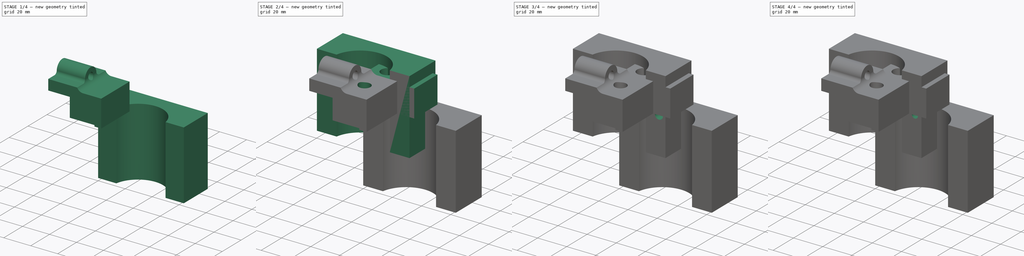
[diagram: build sequence overview — one tinted view per stage of 4, left to right]
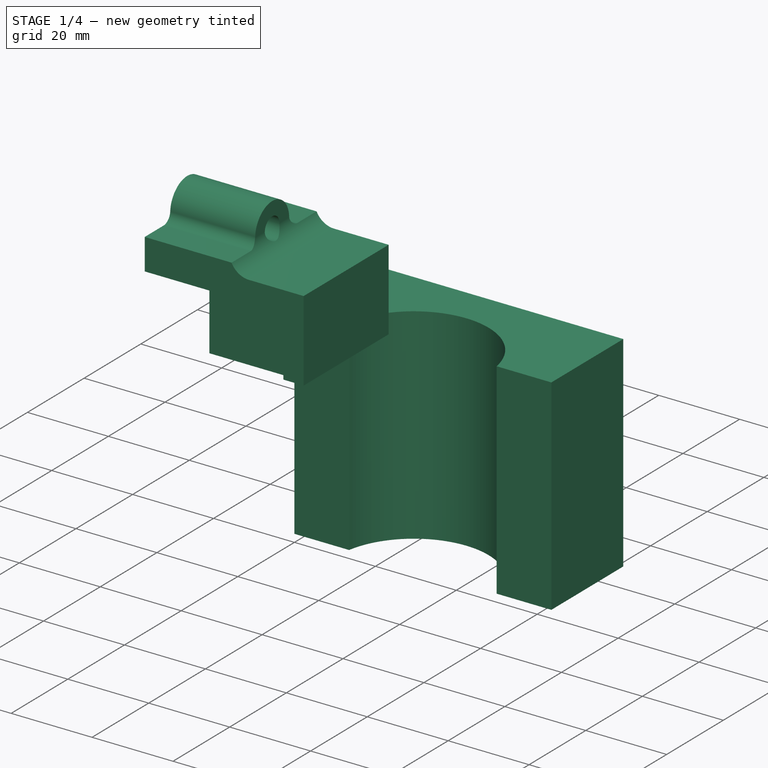
[diagram: stage 1 of 4 — iso view after this stage's code; geometry added in this stage tinted green]
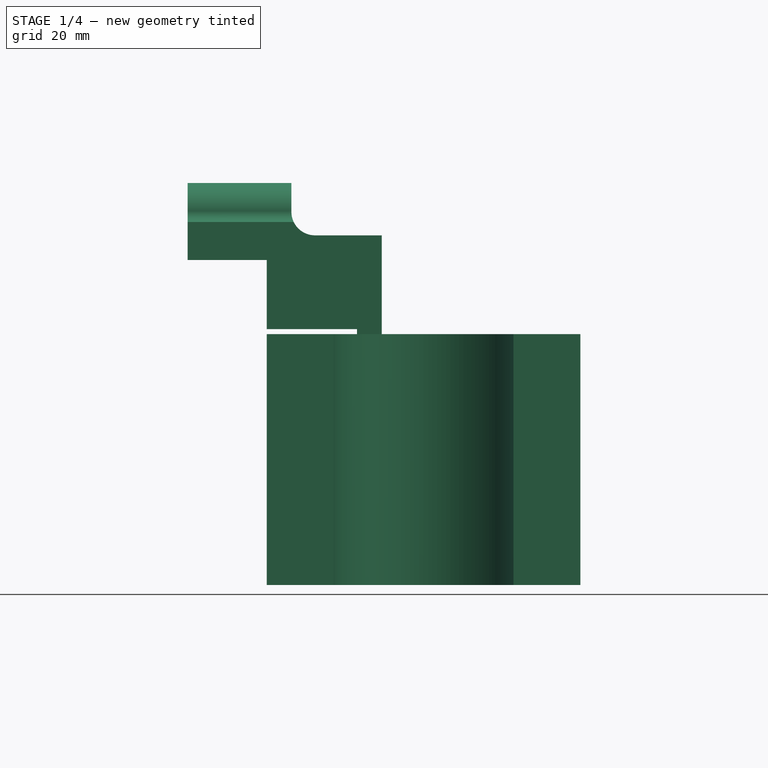
[diagram: stage 1 of 4 — front view after this stage's code; geometry added in this stage tinted green]
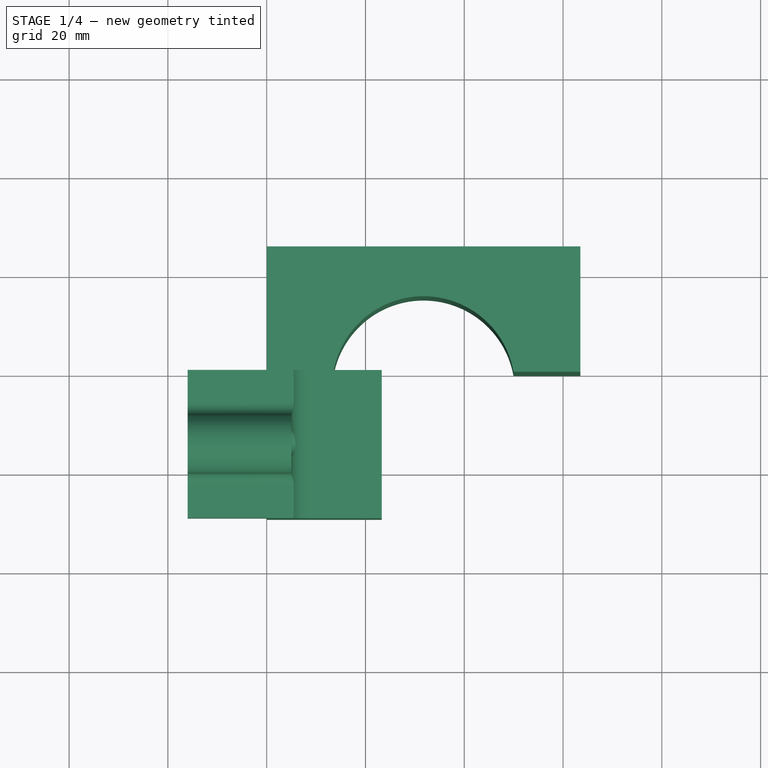
[diagram: stage 1 of 4 — top view after this stage's code; geometry added in this stage tinted green]
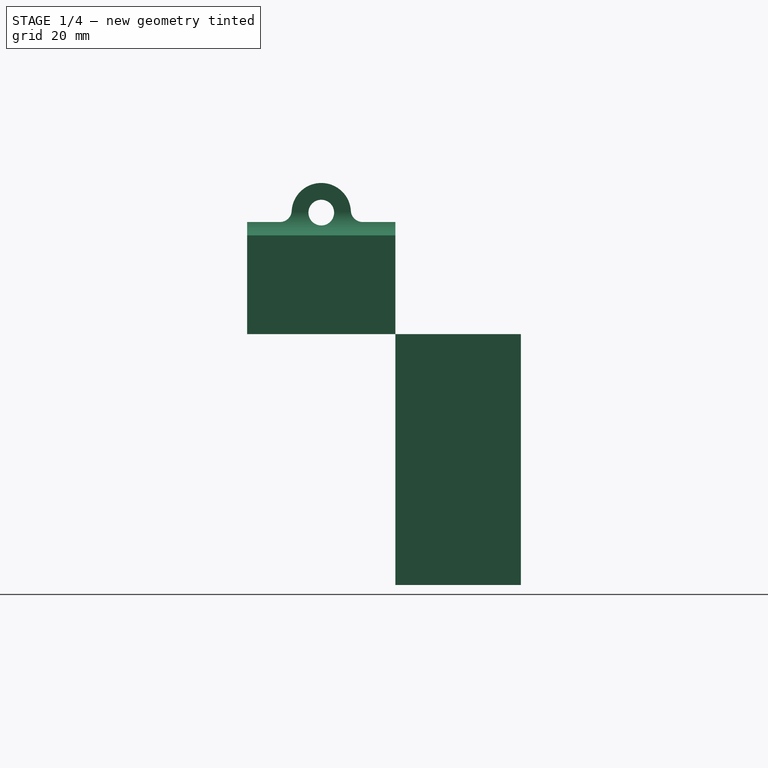
[diagram: stage 1 of 4 — right view after this stage's code; geometry added in this stage tinted green]
FCSTD DOCUMENT  (FreeCAD 0.17R13125 (Git))
Label: misc
License: All rights reserved
LicenseURL: http://en.wikipedia.org/wiki/All_rights_reserved
objects: Sketcher::SketchObject×21, PartDesign::Body×13, TechDraw::DrawViewDimension×10, App::Part×6, App::FeaturePython×6, Part::Part2DObjectPython×6, PartDesign::Pad×5, PartDesign::Pocket×4, Drawing::FeatureViewPart×4, TechDraw::DrawProjGroupItem×4, PartDesign::Mirrored×3, TechDraw::DrawSVGTemplate×3, TechDraw::DrawPage×3, PartDesign::Hole×2, TechDraw::DrawViewPart×2, Drawing::FeaturePage×1, TechDraw::DrawProjGroup×1
note: 71 computed .brp shape members not serialized (recipe doc carries the construction recipe); baked Part::Feature solids carry a one-line shape summary decoded from their .brp

FEATURE [PartDesign::Body] Body002
  Group = -> [Sketch007,Pad002]
  Origin = -> Origin004
  Tip = -> Pad002
FEATURE [Sketcher::SketchObject] Sketch008
  MapMode = 5
  Placement = pos=(0,0,0) rot=(1,0,0;1.5708rad)
  Support = -> [XZ_Plane005]
  sketch-geometry (15):
    g0: LineSegment StartX=-16 StartY=15 StartZ=0 EndX=0 EndY=15 EndZ=0
    g1: LineSegment StartX=0 StartY=15 StartZ=0 EndX=0 EndY=1 EndZ=0
    g2: LineSegment StartX=0 StartY=1 StartZ=0 EndX=18.2852 EndY=1 EndZ=0
    g3: LineSegment StartX=18.2852 StartY=1 StartZ=0 EndX=18.2852 EndY=0 EndZ=0
    g4: LineSegment StartX=18.2852 StartY=0 StartZ=0 EndX=23.2852 EndY=0 EndZ=0
    g5: LineSegment StartX=23.2852 StartY=0 StartZ=0 EndX=23.2852 EndY=20 EndZ=0
    g6: LineSegment StartX=23.2852 StartY=20 StartZ=0 EndX=9.7625 EndY=20 EndZ=0
    g7: LineSegment StartX=5 StartY=24.7625 StartZ=0 EndX=5 EndY=30.6 EndZ=0
    g8: LineSegment StartX=5 StartY=30.6 StartZ=0 EndX=-16 EndY=30.6 EndZ=0
    g9: LineSegment StartX=-16 StartY=30.6 StartZ=0 EndX=-16 EndY=15 EndZ=0
    g10: LineSegment [constr] StartX=-16 StartY=27.6 StartZ=0 EndX=5 EndY=27.6 EndZ=0
    g11: LineSegment [constr] StartX=5 StartY=22.4 StartZ=0 EndX=-16 EndY=22.4 EndZ=0
    g12: LineSegment [constr] StartX=-16 StartY=25 StartZ=0 EndX=5 EndY=25 EndZ=0
    g13: ArcOfCircle CenterX=9.7625 CenterY=24.7625 CenterZ=0 NormalX=0 NormalY=0 NormalZ=1 AngleXU=0 Radius=4.7625 StartAngle=3.14159 EndAngle=4.71239
    g14: LineSegment [constr] StartX=-21 StartY=25 StartZ=0 EndX=-6 EndY=25 EndZ=0
  constraints (46):
    c: PointOnObject(g0,g-2)
    c: Horizontal(g0)
    c: Coincident(g1,g0)
    c: Vertical(g1)
    c: Coincident(g2,g1)
    c: Horizontal(g2)
    c: Coincident(g3,g2)
    c: Vertical(g3)
    c: Coincident(g4,g3)
    c: Horizontal(g4)
    c: Coincident(g5,g4)
    c: Vertical(g5)
    c: Coincident(g6,g5)
    c: Horizontal(g6)
    c: Vertical(g7)
    c: Coincident(g8,g7)
    c: Horizontal(g8)
    c: Coincident(g9,g8)
    c: Coincident(g9,g0)
    c: Vertical(g9)
    c: PointOnObject(g3,g-1)
    c: DistanceX(g-2,g7) = 5
    c: Distance(g4) = 5
    c: DistanceY(g-1,g0) = 15
    c: DistanceY(g-1,g1) = 1
    c: PointOnObject(g10,g9)
    c: Horizontal(g10)
    c: PointOnObject(g11,g9)
    c: Horizontal(g11)
    c: PointOnObject(g12,g9)
    c: PointOnObject(g12,g7)
    c: Symmetric(g11,g10,g12)
    c: Symmetric(g11,g10,g12)
    c: Distance(g10,g11) = 5.2
    c: Distance(g0,g0) = 16
    c: Tangent(g7,g13) = 1.5708
    c: Tangent(g6,g13) = 1.5708
    c: Radius(g13) = 4.7625
    c: DistanceY(g0,g6) = 5
    c: DistanceY(g6,g12) = 5
    c: PointOnObject(g11,g7)
    c: Distance(g10,g7) = 3
    c: Horizontal(g14)
    c: PointOnObject(g14,g12)
    c: Distance(g14) = 15
    c: Distance(g14,g9) = 5
FEATURE [PartDesign::Pad] Pad003
  Length = 30
  Length2 = 100
  Placement = pos=(0,0,0) rot=(1,0,0;1.5708rad)
  Profile = -> Sketch008
  Type = 0
FEATURE [Sketcher::SketchObject] Sketch009
  ExternalGeometry = -> [Pad003]
  MapMode = 5
  Placement = pos=(5,0,0) rot=(0.707107,0,0.707107;3.14159rad)
  Support = -> [Pad003]
  sketch-geometry (9):
    g0: ArcOfCircle CenterX=24.6 CenterY=15 CenterZ=0 NormalX=0 NormalY=0 NormalZ=1 AngleXU=0 Radius=6 StartAngle=4.76967 EndAngle=7.7967
    g1: LineSegment StartX=22.6986 StartY=23.3675 StartZ=0 EndX=22.6986 EndY=35 EndZ=0
    g2: LineSegment StartX=22.6986 StartY=35 StartZ=0 EndX=35.6 EndY=35 EndZ=0
    g3: LineSegment StartX=35.6 StartY=35 StartZ=0 EndX=35.6 EndY=-5 EndZ=0
    g4: LineSegment StartX=35.6 StartY=-5 StartZ=0 EndX=22.6986 EndY=-5 EndZ=0
    g5: LineSegment StartX=22.6986 StartY=-5 StartZ=0 EndX=22.6986 EndY=6.6325 EndZ=0
    g6: LineSegment [constr] StartX=30.6 StartY=15 StartZ=0 EndX=28.6 EndY=15 EndZ=0
    g7: ArcOfCircle CenterX=25.0798 CenterY=23.3675 CenterZ=0 NormalX=0 NormalY=0 NormalZ=1 AngleXU=0 Radius=2.38125 StartAngle=3.14159 EndAngle=4.65511
    g8: ArcOfCircle CenterX=25.0798 CenterY=6.6325 CenterZ=0 NormalX=0 NormalY=0 NormalZ=1 AngleXU=0 Radius=2.38125 StartAngle=1.62808 EndAngle=3.14159
  constraints (28):
    c: Radius(g0) = 6
    c: Vertical(g1)
    c: Coincident(g2,g1)
    c: Coincident(g3,g2)
    c: Vertical(g3)
    c: Coincident(g4,g3)
    c: Horizontal(g4)
    c: Coincident(g5,g4)
    c: Vertical(g5)
    c: Horizontal(g2)
    c: PointOnObject(g6,g-3)
    c: Symmetric(g-3,g-3,g6)
    c: Distance(g6) = 2
    c: DistanceX(g-3,g2) = 5
    c: Coincident(g7,g0)
    c: Coincident(g7,g1)
    c: Radius(g7) = 2.38125
    c: Tangent(g7,g0)
    c: Tangent(g7,g1)
    c: Coincident(g8,g0)
    c: Coincident(g8,g5)
    c: Tangent(g5,g8)
    c: Tangent(g8,g0)
    c: Radius(g8) = 2.38125
    c: Symmetric(g0,g0,g6)
    c: Distance(g-3,g2) = 5
    c: Distance(g-3,g4) = 5
    c: Distance(g0,g-3) = 6
FEATURE [PartDesign::Pocket] Pocket001
  BaseFeature = -> Pad003
  Length = 5
  Length2 = 100
  Midplane = true
  Placement = pos=(0,0,0) rot=(1,0,0;1.5708rad)
  Profile = -> Sketch009
  Type = 1
FEATURE [Sketcher::SketchObject] Sketch010
  ExternalGeometry = -> [Pocket001]
  MapMode = 5
  Placement = pos=(5,0,0) rot=(0.707107,0,0.707107;3.14159rad)
  Support = -> [Pocket001]
  sketch-geometry (1):
    g0: Circle CenterX=24.6 CenterY=15 CenterZ=0 NormalX=0 NormalY=0 NormalZ=1 AngleXU=0 Radius=2.6
  constraints (2):
    c: Coincident(g0,g-3)
    c: Radius(g0) = 2.6
FEATURE [PartDesign::Pocket] Pocket002
  BaseFeature = -> Pocket001
  Length = 5
  Length2 = 100
  Midplane = true
  Placement = pos=(0,0,0) rot=(1,0,0;1.5708rad)
  Profile = -> Sketch010
  Type = 1
FEATURE [PartDesign::Body] Body003
  Group = -> [Sketch008,Pad003,Sketch009,Pocket001,Sketch010,Pocket002,Sketch011,Pocket003]
  Origin = -> Origin005
  Tip = -> Pocket003
FEATURE [Sketcher::SketchObject] Sketch012
  MapMode = 5
  Support = -> [XY_Plane007]
  sketch-geometry (6):
    g0: LineSegment StartX=63.5 StartY=0 StartZ=0 EndX=63.5 EndY=25.4 EndZ=0
    g1: LineSegment StartX=63.5 StartY=25.4 StartZ=0 EndX=0 EndY=25.4 EndZ=0
    g2: LineSegment StartX=0 StartY=25.4 StartZ=0 EndX=0 EndY=0 EndZ=0
    g3: ArcOfCircle CenterX=31.75 CenterY=-3.2 CenterZ=0 NormalX=0 NormalY=0 NormalZ=1 AngleXU=0 Radius=18.5 StartAngle=0.173847 EndAngle=2.96775
    g4: LineSegment StartX=13.5289 StartY=0 StartZ=0 EndX=0 EndY=0 EndZ=0
    g5: LineSegment StartX=49.9711 StartY=0 StartZ=0 EndX=63.5 EndY=0 EndZ=0
  constraints (18):
    c: Coincident(g0,g1)
    c: Coincident(g1,g2)
    c: Horizontal(g1)
    c: Vertical(g0)
    c: Vertical(g2)
    c: Distance(g2) = 25.4
    c: Distance(g1) = 63.5
    c: Coincident(g4,g-1)
    c: Horizontal(g4)
    c: Coincident(g3,g4)
    c: Coincident(g5,g3)
    c: Coincident(g5,g0)
    c: Horizontal(g5)
    c: Equal(g5,g4)
    c: PointOnObject(g0,g-1)
    c: Coincident(g2,g-1)
    c: Radius(g3) = 18.5
    c: DistanceY(g-1,g3) = -3.2
FEATURE [PartDesign::Pad] Pad004
  Length = 50.8
  Length2 = 100
  Profile = -> Sketch012
  Reversed = true
  Type = 0
FEATURE [PartDesign::Body] Body004
  Group = -> [Sketch012,Pad004]
  Origin = -> Origin007
  Tip = -> Pad004
FEATURE [App::Part] Part002
  Group = -> [Body004]
  License = CC BY 3.0
  LicenseURL = http://creativecommons.org/licenses/by/3.0/
  Origin = -> Origin006
FEATURE [Sketcher::SketchObject] Sketch013
  MapMode = 5
  Support = -> [XY_Plane009]
  sketch-geometry (45):
    g0: LineSegment StartX=0 StartY=0 StartZ=0 EndX=38.1 EndY=0 EndZ=0
    g1: LineSegment StartX=38.1 StartY=0 StartZ=0 EndX=38.1 EndY=400 EndZ=0
    g2: LineSegment StartX=38.1 StartY=400 StartZ=0 EndX=0 EndY=400 EndZ=0
    g3: LineSegment StartX=0 StartY=400 StartZ=0 EndX=0 EndY=0 EndZ=0
    g4: Circle CenterX=120.833 CenterY=175.461 CenterZ=0 NormalX=0 NormalY=0 NormalZ=1 AngleXU=0 Radius=25.4
    g5: LineSegment StartX=111.945 StartY=225.146 StartZ=0 EndX=147.134 EndY=236.58 EndZ=0
    g6: LineSegment StartX=147.134 StartY=236.58 StartZ=0 EndX=178.036 EndY=141.474 EndZ=0
    g7: LineSegment StartX=178.036 StartY=141.474 StartZ=0 EndX=142.846 EndY=130.04 EndZ=0
    g8: LineSegment StartX=142.846 StartY=130.04 StartZ=0 EndX=111.945 EndY=225.146 EndZ=0
    g9: LineSegment StartX=122.145 StartY=221.259 StartZ=0 EndX=141.166 EndY=227.439 EndZ=0
    g10: LineSegment StartX=141.166 StartY=227.439 StartZ=0 EndX=146.977 EndY=238.843 EndZ=0
    g11: LineSegment StartX=146.977 StartY=238.843 StartZ=0 EndX=142.342 EndY=253.109 EndZ=0
    g12: LineSegment StartX=142.342 StartY=253.109 StartZ=0 EndX=106.106 EndY=241.335 EndZ=0
    g13: LineSegment StartX=106.106 StartY=241.335 StartZ=0 EndX=110.742 EndY=227.069 EndZ=0
    g14: LineSegment StartX=110.742 StartY=227.069 StartZ=0 EndX=122.145 EndY=221.259 EndZ=0
    g15: GeomPoint X=113.515 Y=225.656 Z=0
    g16: GeomPoint X=145.564 Y=236.069 Z=0
    g17: LineSegment StartX=162.163 StartY=104.773 StartZ=0 EndX=177.261 EndY=109.678 EndZ=0
    g18: LineSegment StartX=177.261 StartY=109.678 StartZ=0 EndX=116.492 EndY=296.704 EndZ=0
    g19: LineSegment StartX=116.492 StartY=296.704 StartZ=0 EndX=101.394 EndY=291.799 EndZ=0
    g20: LineSegment StartX=101.394 StartY=291.799 StartZ=0 EndX=162.163 EndY=104.773 EndZ=0
    g21: LineSegment [constr] StartX=169.712 StartY=107.225 StartZ=0 EndX=108.943 EndY=294.252 EndZ=0
    g22: LineSegment StartX=62.3164 StartY=233.784 StartZ=0 EndX=168.007 EndY=268.125 EndZ=0
    g23: LineSegment StartX=168.007 StartY=268.125 StartZ=0 EndX=156.234 EndY=304.36 EndZ=0
    g24: LineSegment StartX=156.234 StartY=304.36 StartZ=0 EndX=50.5429 EndY=270.019 EndZ=0
    g25: LineSegment StartX=50.5429 StartY=270.019 StartZ=0 EndX=62.3164 EndY=233.784 EndZ=0
    g26: LineSegment StartX=44.45 StartY=263.674 StartZ=0 EndX=49.45 EndY=263.674 EndZ=0
    g27: LineSegment StartX=49.45 StartY=263.674 StartZ=0 EndX=57.703 EndY=238.274 EndZ=0
    g28: LineSegment StartX=57.703 StartY=238.274 StartZ=0 EndX=44.45 EndY=238.274 EndZ=0
    g29: LineSegment StartX=44.45 StartY=238.274 StartZ=0 EndX=44.45 EndY=212.874 EndZ=0
    g30: LineSegment StartX=44.45 StartY=212.874 StartZ=0 EndX=38.1 EndY=212.874 EndZ=0
    g31: LineSegment StartX=44.45 StartY=263.674 StartZ=0 EndX=44.45 EndY=289.074 EndZ=0
    g32: LineSegment StartX=44.45 StartY=289.074 StartZ=0 EndX=38.1 EndY=289.074 EndZ=0
    g33: LineSegment [constr] StartX=56.4296 StartY=251.901 StartZ=0 EndX=162.121 EndY=286.242 EndZ=0
    g34: LineSegment StartX=143.003 StartY=127.778 StartZ=0 EndX=148.814 EndY=139.182 EndZ=0
    g35: LineSegment StartX=148.814 StartY=139.182 StartZ=0 EndX=167.835 EndY=145.362 EndZ=0
    g36: LineSegment StartX=167.835 StartY=145.362 StartZ=0 EndX=179.238 EndY=139.552 EndZ=0
    g37: LineSegment StartX=179.238 StartY=139.552 StartZ=0 EndX=183.874 EndY=125.286 EndZ=0
    g38: LineSegment StartX=183.874 StartY=125.286 StartZ=0 EndX=147.638 EndY=113.512 EndZ=0
    g39: LineSegment StartX=147.638 StartY=113.512 StartZ=0 EndX=143.003 EndY=127.778 EndZ=0
    g40: GeomPoint X=144.416 Y=130.55 Z=0
    g41: LineSegment StartX=142.342 StartY=253.109 StartZ=0 EndX=160.459 EndY=258.995 EndZ=0
    g42: LineSegment StartX=160.459 StartY=258.995 StartZ=0 EndX=158.497 EndY=265.035 EndZ=0
    g43: LineSegment StartX=106.106 StartY=241.335 StartZ=0 EndX=87.9887 EndY=235.448 EndZ=0
    g44: LineSegment StartX=87.9887 StartY=235.448 StartZ=0 EndX=86.0264 EndY=241.488 EndZ=0
  constraints (131):
    c: Coincident(g0,g1)
    c: Coincident(g1,g2)
    c: Coincident(g2,g3)
    c: Coincident(g3,g0)
    c: Horizontal(g0)
    c: Horizontal(g2)
    c: Vertical(g1)
    c: Vertical(g3)
    c: PointOnObject(g0,g-1)
    c: Distance(g2) = 38.1
    c: Radius(g4) = 25.4
    c: Coincident(g5,g6)
    c: Coincident(g6,g7)
    c: Coincident(g7,g8)
    c: Coincident(g8,g5)
    c: Parallel(g6,g8)
    c: Parallel(g5,g7)
    c: Perpendicular(g8,g7)
    c: Distance(g5) = 37
    c: Distance(g8) = 100
    c: Angle(g6) = -1.25664
    c: Distance(g4,g8) = 6.9
    c: Distance(g4,g7) = 50
    c: Coincident(g9,g10)
    c: Coincident(g10,g11)
    c: Coincident(g11,g12)
    c: Coincident(g12,g13)
    c: Coincident(g13,g14)
    c: Coincident(g14,g9)
    c: Parallel(g9,g12)
    c: Equal(g11,g13)
    c: Equal(g14,g10)
    c: Perpendicular(g12,g13)
    c: Parallel(g11,g13)
    c: Parallel(g12,g5)
    c: Distance(g12) = 38.1
    c: PointOnObject(g15,g14)
    c: PointOnObject(g16,g10)
    c: PointOnObject(g16,g5)
    c: PointOnObject(g15,g5)
    c: Distance(g15,g5) = 1.651
    c: Distance(g16,g5) = 1.651
    c: Coincident(g18,g17)
    c: Coincident(g19,g18)
    c: Coincident(g20,g19)
    c: Coincident(g20,g17)
    c: Equal(g20,g18)
    c: Parallel(g20,g18)
    c: Perpendicular(g20,g19)
    c: PointOnObject(g21,g17)
    c: PointOnObject(g21,g19)
    c: Symmetric(g19,g18,g21)
    c: Parallel(g21,g20)
    c: Symmetric(g9,g9,g21)
    c: Distance(g19) = 15.875
    c: Distance(g9) = 20
    c: Angle(g14,g13) = 2.35619
    c: Distance(g13) = 15
    c: Coincident(g22,g23)
    c: Coincident(g23,g24)
    c: Coincident(g24,g25)
    c: Coincident(g25,g22)
    c: Equal(g25,g23)
    c: Parallel(g25,g23)
    c: Perpendicular(g22,g25)
    c: Distance(g23) = 38.1
    c: Parallel(g22,g12)
    c: Coincident(g26,g27)
    c: Coincident(g27,g28)
    c: Horizontal(g28)
    c: Coincident(g28,g29)
    c: Vertical(g29)
    c: Coincident(g29,g30)
    c: PointOnObject(g30,g1)
    c: Coincident(g26,g31)
    c: Vertical(g31)
    c: Coincident(g31,g32)
    c: PointOnObject(g32,g1)
    c: Horizontal(g32)
    c: Horizontal(g30)
    c: Equal(g31,g29)
    c: Horizontal(g26)
    c: Distance(g32) = 6.35
    c: Equal(g30,g32)
    c: DistanceY(g28,g26) = 25.4
    c: PointOnObject(g33,g25)
    c: PointOnObject(g33,g23)
    c: Symmetric(g24,g22,g33)
    c: Symmetric(g27,g26,g33)
    c: Parallel(g33,g24)
    c: Distance(g26,g25) = 3
    c: Distance(g26) = 5
    c: DistanceY(g30,g32) = 76.2
    c: Coincident(g0,g-1)
    c: Distance(g3) = 400
    c: Distance(g19,g24) = 5
    c: Coincident(g34,g35)
    c: Coincident(g35,g36)
    c: Coincident(g36,g37)
    c: Coincident(g37,g38)
    c: Coincident(g38,g39)
    c: Coincident(g39,g34)
    c: Equal(g34,g14)
    c: Equal(g36,g34)
    c: Parallel(g35,g38)
    c: Parallel(g38,g7)
    c: Equal(g35,g9)
    c: Equal(g37,g11)
    c: Equal(g39,g37)
    c: Perpendicular(g39,g38)
    c: Parallel(g37,g39)
    c: Symmetric(g34,g35,g21)
    c: Equal(g38,g12)
    c: PointOnObject(g40,g7)
    c: PointOnObject(g40,g34)
    c: Distance(g40,g7) = 1.65
    c: Distance(g17,g7) = 30
    c: Coincident(g41,g11)
    c: Coincident(g42,g41)
    c: PointOnObject(g42,g22)
    c: Coincident(g43,g12)
    c: Coincident(g44,g43)
    c: PointOnObject(g44,g22)
    c: Parallel(g44,g42)
    c: Perpendicular(g22,g44)
    c: Parallel(g43,g22)
    c: Parallel(g41,g22)
    c: Equal(g43,g41)
    c: Distance(g42,g44) = 76.2
    c: Distance(g42) = 6.35
    c: Distance(g42,g22) = 10
FEATURE [PartDesign::Body] Body005
  Group = -> [Sketch013]
  Origin = -> Origin009
FEATURE [TechDraw::DrawViewPart] View
  ArcCenterMarks = true
  CenterScale = 2
  CoarseView = false
  Direction = (0,0,1)
  ExtraWidth = 1.4
  Focus = 100
  HardHidden = false
  HiddenWidth = 0.35
  HorizCenterLine = false
  IsoCount = 0
  IsoHidden = false
  IsoVisible = false
  IsoWidth = 0.5
  KeepLabel = false
  LineWidth = 0.7
  LockPosition = false
  Perspective = false
  Rotation = 0
  Scale = 0.5
  ScaleType = 0
  SeamHidden = false
  SeamVisible = false
  ShowSectionLine = true
  SmoothHidden = false
  SmoothVisible = false
  Source = -> [Sketch013]
  VertCenterLine = false
  X = 61.0178
  Y = 183.563
FEATURE [TechDraw::DrawSVGTemplate] Template001
  EditableTexts = AUTHOR_NAME=AUTHOR NAME; DN=DN; DRAWING_TITLE=DRAWING TITLE; FC-DATE=DD/MM/YYYY; FC-REV=REV A; FC-SC=SCALE; FC-SH=X / Y; FC-SI=A4; FreeCAD_DRAWING=FreeCAD DRAWING; PN=PN
  Height = 297
  Orientation = 0
  Width = 210
FEATURE [TechDraw::DrawPage] Page002
  KeepUpdated = true
  ProjectionType = 0
  Template = -> Template001
  Views = -> [View]
FEATURE [Sketcher::SketchObject] Sketch014
  MapMode = 5
  Support = -> [XY_Plane010]
  sketch-geometry (40):
    g0: LineSegment StartX=0 StartY=0 StartZ=0 EndX=38.1 EndY=0 EndZ=0
    g1: LineSegment StartX=38.1 StartY=0 StartZ=0 EndX=38.1 EndY=400 EndZ=0
    g2: LineSegment StartX=38.1 StartY=400 StartZ=0 EndX=0 EndY=400 EndZ=0
    g3: LineSegment StartX=0 StartY=400 StartZ=0 EndX=0 EndY=0 EndZ=0
    g4: Circle CenterX=133.35 CenterY=100 CenterZ=0 NormalX=0 NormalY=0 NormalZ=1 AngleXU=0 Radius=25.4
    g5: LineSegment StartX=121.371 StartY=159.196 StartZ=0 EndX=156.56 EndY=170.629 EndZ=0
    g6: LineSegment StartX=156.56 StartY=170.629 StartZ=0 EndX=193.642 EndY=56.5025 EndZ=0
    g7: LineSegment StartX=193.642 StartY=56.5025 StartZ=0 EndX=158.453 EndY=45.0688 EndZ=0
    g8: LineSegment StartX=158.453 StartY=45.0688 StartZ=0 EndX=121.371 EndY=159.196 EndZ=0
    g9: LineSegment StartX=126.531 StartY=157.877 StartZ=0 EndX=153.161 EndY=166.529 EndZ=0
    g10: LineSegment StartX=153.161 StartY=166.529 StartZ=0 EndX=162.519 EndY=184.895 EndZ=0
    g11: LineSegment StartX=162.519 StartY=184.895 StartZ=0 EndX=159.429 EndY=194.405 EndZ=0
    g12: LineSegment StartX=159.429 StartY=194.405 StartZ=0 EndX=105.076 EndY=176.745 EndZ=0
    g13: LineSegment StartX=105.076 StartY=176.745 StartZ=0 EndX=108.166 EndY=167.234 EndZ=0
    g14: LineSegment StartX=108.166 StartY=167.234 StartZ=0 EndX=126.531 EndY=157.877 EndZ=0
    g15: GeomPoint X=122.941 Y=159.706 Z=0
    g16: GeomPoint X=154.99 Y=170.119 Z=0
    g17: LineSegment StartX=44.45 StartY=340.298 StartZ=0 EndX=44.45 EndY=264.098 EndZ=0
    g18: LineSegment StartX=44.45 StartY=264.098 StartZ=0 EndX=38.1 EndY=264.098 EndZ=0
    g19: LineSegment StartX=44.45 StartY=340.298 StartZ=0 EndX=38.1 EndY=340.298 EndZ=0
    g20: GeomPoint X=160.023 Y=45.5787 Z=0
    g21: LineSegment StartX=143.146 StartY=275.341 StartZ=0 EndX=224.644 EndY=24.5169 EndZ=0
    g22: LineSegment StartX=224.644 StartY=24.5169 StartZ=0 EndX=260.879 EndY=36.2905 EndZ=0
    g23: LineSegment StartX=260.879 StartY=36.2905 StartZ=0 EndX=179.381 EndY=287.114 EndZ=0
    g24: LineSegment StartX=179.381 StartY=287.114 StartZ=0 EndX=143.146 EndY=275.341 EndZ=0
    g25: LineSegment [constr] StartX=176.048 StartY=50.7856 StartZ=0 EndX=138.966 EndY=164.912 EndZ=0
    g26: GeomPoint X=38.1 Y=176.2 Z=0
    g27: GeomPoint X=192.073 Y=55.9926 Z=0
    g28: LineSegment StartX=105.076 StartY=176.745 StartZ=0 EndX=101.913 EndY=175.717 EndZ=0
    g29: LineSegment StartX=101.913 StartY=175.717 StartZ=0 EndX=97.9889 EndY=187.796 EndZ=0
    g30: LineSegment StartX=97.9889 StartY=187.796 StartZ=0 EndX=164.563 EndY=209.427 EndZ=0
    g31: LineSegment StartX=159.429 StartY=194.405 StartZ=0 EndX=168.487 EndY=197.349 EndZ=0
    g32: LineSegment StartX=44.45 StartY=283.148 StartZ=0 EndX=154.45 EndY=283.148 EndZ=0
    g33: LineSegment StartX=154.45 StartY=283.148 StartZ=0 EndX=154.45 EndY=321.248 EndZ=0
    g34: LineSegment StartX=154.45 StartY=321.248 StartZ=0 EndX=44.45 EndY=321.248 EndZ=0
    g35: ArcOfCircle CenterX=154.45 CenterY=302.198 CenterZ=0 NormalX=0 NormalY=0 NormalZ=1 AngleXU=0 Radius=19.05 StartAngle=4.71239 EndAngle=7.85398
    g36: LineSegment [constr] StartX=161.264 StartY=281.227 StartZ=0 EndX=154.45 EndY=302.198 EndZ=0
    g37: GeomPoint X=160.337 Y=284.081 Z=0
    g38: LineSegment StartX=146.445 StartY=203.54 StartZ=0 EndX=130.747 EndY=251.854 EndZ=0
    g39: LineSegment StartX=130.747 StartY=251.854 StartZ=0 EndX=148.865 EndY=257.741 EndZ=0
  constraints (121):
    c: Coincident(g0,g1)
    c: Coincident(g1,g2)
    c: Coincident(g2,g3)
    c: Coincident(g3,g0)
    c: Horizontal(g0)
    c: Horizontal(g2)
    c: Vertical(g1)
    c: Vertical(g3)
    c: PointOnObject(g0,g-1)
    c: Distance(g2) = 38.1
    c: Radius(g4) = 25.4
    c: Coincident(g5,g6)
    c: Coincident(g6,g7)
    c: Coincident(g7,g8)
    c: Coincident(g8,g5)
    c: Parallel(g6,g8)
    c: Parallel(g5,g7)
    c: Perpendicular(g8,g7)
    c: Distance(g5) = 37
    c: Distance(g8) = 120
    c: Distance(g4,g7) = 60
    c: Coincident(g9,g10)
    c: Coincident(g10,g11)
    c: Coincident(g11,g12)
    c: Coincident(g12,g13)
    c: Coincident(g13,g14)
    c: Coincident(g14,g9)
    c: Parallel(g9,g12)
    c: Equal(g11,g13)
    c: Equal(g14,g10)
    c: Perpendicular(g12,g13)
    c: Parallel(g11,g13)
    c: Parallel(g12,g5)
    c: Distance(g12) = 57.15
    c: PointOnObject(g15,g14)
    c: PointOnObject(g16,g10)
    c: PointOnObject(g16,g5)
    c: PointOnObject(g15,g5)
    c: Distance(g15,g5) = 1.651
    c: Distance(g16,g5) = 1.651
    c: Distance(g9) = 28
    c: Angle(g14,g13) = 2.35619
    c: Distance(g13) = 10
    c: Vertical(g17)
    c: Coincident(g17,g18)
    c: PointOnObject(g18,g1)
    c: PointOnObject(g19,g1)
    c: Horizontal(g19)
    c: Horizontal(g18)
    c: Distance(g19) = 6.35
    c: Equal(g18,g19)
    c: DistanceY(g18,g19) = 76.2
    c: Coincident(g0,g-1)
    c: Distance(g3) = 400
    c: PointOnObject(g20,g7)
    c: Distance(g20,g7) = 1.65
    c: Distance(g4,g1) = 95.25
    c: DistanceY(g-1,g4) = 100
    c: Coincident(g21,g22)
    c: Coincident(g22,g23)
    c: Coincident(g23,g24)
    c: Coincident(g24,g21)
    c: Parallel(g21,g23)
    c: Parallel(g24,g22)
    c: Perpendicular(g24,g21)
    c: Parallel(g21,g6)
    c: PointOnObject(g25,g7)
    c: PointOnObject(g25,g5)
    c: Symmetric(g5,g5,g25)
    c: Parallel(g25,g6)
    c: PointOnObject(g26,g1)
    c: DistanceY(g4,g26) = 76.2
    c: PointOnObject(g27,g7)
    c: Distance(g27,g6) = 1.65
    c: Tangent(g4,g25)
    c: Angle(g25) = 1.88496
    c: Coincident(g17,g19)
    c: Coincident(g28,g12)
    c: Coincident(g29,g28)
    c: Coincident(g30,g29)
    c: Coincident(g31,g11)
    c: PointOnObject(g31,g21)
    c: Parallel(g31,g12)
    c: Parallel(g28,g12)
    c: Parallel(g29,g21)
    c: Parallel(g30,g12)
    c: PointOnObject(g30,g21)
    c: Distance(g30) = 70
    c: PointOnObject(g32,g17)
    c: Horizontal(g32)
    c: Coincident(g33,g32)
    c: Vertical(g33)
    c: Coincident(g34,g33)
    c: PointOnObject(g34,g17)
    c: Horizontal(g34)
    c: Distance(g33) = 38.1
    c: Coincident(g35,g32)
    c: Coincident(g35,g33)
    c: PointOnObject(g35,g33)
    c: Distance(g25,g21) = 38.1
    c: Distance(g29) = 12.7
    c: Distance(g22) = 38.1
    c: PointOnObject(g36,g24)
    c: Coincident(g36,g35)
    c: Parallel(g36,g21)
    c: Symmetric(g21,g23,g36)
    c: PointOnObject(g37,g35)
    c: PointOnObject(g37,g36)
    c: Distance(g37,g36) = 3
    c: Distance(g17,g34) = 19.05
    c: PointOnObject(g38,g30)
    c: Coincident(g39,g38)
    c: PointOnObject(g39,g21)
    c: Perpendicular(g21,g39)
    c: Parallel(g38,g21)
    c: Distance(g38) = 50.8
    c: Distance(g39) = 19.05
    c: Distance(g21,g39) = 18.5057
    c: DistanceY(g4,g19) = 240.298
    c: Distance(g6,g22) = 40
    c: Distance(g34) = 110
FEATURE [PartDesign::Body] Body006
  Group = -> [Sketch014]
  Origin = -> Origin010
FEATURE [Sketcher::SketchObject] Sketch015
  MapMode = 5
  Support = -> [XY_Plane011]
  sketch-geometry (56):
    g0: LineSegment StartX=0 StartY=0 StartZ=0 EndX=38.1 EndY=0 EndZ=0
    g1: LineSegment StartX=38.1 StartY=0 StartZ=0 EndX=38.1 EndY=400 EndZ=0
    g2: LineSegment StartX=38.1 StartY=400 StartZ=0 EndX=0 EndY=400 EndZ=0
    g3: LineSegment StartX=0 StartY=400 StartZ=0 EndX=0 EndY=0 EndZ=0
    g4: Circle CenterX=133.35 CenterY=100 CenterZ=0 NormalX=0 NormalY=0 NormalZ=1 AngleXU=0 Radius=25.4
    g5: LineSegment StartX=126.272 StartY=144.112 StartZ=0 EndX=161.461 EndY=155.545 EndZ=0
    g6: LineSegment StartX=161.461 StartY=155.545 StartZ=0 EndX=193.642 EndY=56.5025 EndZ=0
    g7: LineSegment StartX=193.642 StartY=56.5025 StartZ=0 EndX=158.453 EndY=45.0688 EndZ=0
    g8: LineSegment StartX=158.453 StartY=45.0688 StartZ=0 EndX=126.272 EndY=144.112 EndZ=0
    g9: LineSegment StartX=132.077 StartY=140.809 StartZ=0 EndX=158.706 EndY=149.462 EndZ=0
    g10: LineSegment StartX=158.706 StartY=149.462 StartZ=0 EndX=164.767 EndY=177.975 EndZ=0
    g11: LineSegment StartX=164.767 StartY=177.975 StartZ=0 EndX=161.677 EndY=187.485 EndZ=0
    g12: LineSegment StartX=161.677 StartY=187.485 StartZ=0 EndX=107.324 EndY=169.825 EndZ=0
    g13: LineSegment StartX=107.324 StartY=169.825 StartZ=0 EndX=110.414 EndY=160.314 EndZ=0
    g14: LineSegment StartX=110.414 StartY=160.314 StartZ=0 EndX=132.077 EndY=140.809 EndZ=0
    g15: GeomPoint X=127.842 Y=144.622 Z=0
    g16: GeomPoint X=159.891 Y=155.035 Z=0
    g17: LineSegment StartX=55.372 StartY=435.519 StartZ=0 EndX=55.372 EndY=283.119 EndZ=0
    g18: LineSegment StartX=55.372 StartY=283.119 StartZ=0 EndX=38.1 EndY=283.119 EndZ=0
    g19: LineSegment StartX=55.372 StartY=435.519 StartZ=0 EndX=38.1 EndY=435.519 EndZ=0
    g20: GeomPoint X=160.023 Y=45.5787 Z=0
    g21: LineSegment StartX=142.578 StartY=277.089 StartZ=0 EndX=246.893 EndY=-43.9591 EndZ=0
    g22: LineSegment StartX=246.893 StartY=-43.9591 StartZ=0 EndX=283.128 EndY=-32.1856 EndZ=0
    g23: LineSegment StartX=283.128 StartY=-32.1856 StartZ=0 EndX=178.813 EndY=288.863 EndZ=0
    g24: LineSegment StartX=178.813 StartY=288.863 StartZ=0 EndX=142.578 EndY=277.089 EndZ=0
    g25: LineSegment [constr] StartX=176.048 StartY=50.7856 StartZ=0 EndX=143.867 EndY=149.829 EndZ=0
    g26: GeomPoint X=38.1 Y=176.2 Z=0
    g27: GeomPoint X=195.212 Y=57.0123 Z=0
    g28: LineSegment StartX=107.324 StartY=169.825 StartZ=0 EndX=104.471 EndY=168.898 EndZ=0
    g29: LineSegment StartX=104.471 StartY=168.898 StartZ=0 EndX=100.546 EndY=180.976 EndZ=0
    g30: LineSegment StartX=100.546 StartY=180.976 StartZ=0 EndX=148.694 EndY=196.62 EndZ=0
    g31: LineSegment StartX=55.372 StartY=340.269 StartZ=0 EndX=255.372 EndY=340.269 EndZ=0
    g32: LineSegment StartX=255.372 StartY=340.269 StartZ=0 EndX=255.372 EndY=378.369 EndZ=0
    g33: LineSegment StartX=255.372 StartY=378.369 StartZ=0 EndX=55.372 EndY=378.369 EndZ=0
    g34: ArcOfCircle CenterX=153.882 CenterY=303.947 CenterZ=0 NormalX=0 NormalY=0 NormalZ=1 AngleXU=0 Radius=19.05 StartAngle=3.14159 EndAngle=6.28319
    g35: LineSegment [constr] StartX=160.696 StartY=282.976 StartZ=0 EndX=153.882 EndY=303.947 EndZ=0
    g36: GeomPoint X=159.769 Y=285.829 Z=0
    g37: LineSegment StartX=148.694 StartY=196.62 StartZ=0 EndX=130.641 EndY=252.181 EndZ=0
    g38: LineSegment StartX=130.641 StartY=252.181 StartZ=0 EndX=148.758 EndY=258.068 EndZ=0
    g39: LineSegment StartX=172.932 StartY=303.947 StartZ=0 EndX=134.832 EndY=303.947 EndZ=0
    g40: LineSegment StartX=134.832 StartY=303.947 StartZ=0 EndX=134.832 EndY=322.997 EndZ=0
    g41: LineSegment StartX=172.932 StartY=303.947 StartZ=0 EndX=172.932 EndY=322.997 EndZ=0
    g42: LineSegment StartX=77.6819 StartY=340.269 StartZ=0 EndX=77.6819 EndY=322.997 EndZ=0
    g43: LineSegment StartX=77.6819 StartY=322.997 StartZ=0 EndX=230.082 EndY=322.997 EndZ=0
    g44: LineSegment StartX=230.082 StartY=322.997 StartZ=0 EndX=230.082 EndY=340.269 EndZ=0
    g45: LineSegment [constr] StartX=153.882 StartY=303.947 StartZ=0 EndX=153.882 EndY=322.997 EndZ=0
    g46: LineSegment StartX=148.694 StartY=196.62 StartZ=0 EndX=166.811 EndY=202.507 EndZ=0
    g47: LineSegment [constr] StartX=168.774 StartY=196.468 StartZ=0 EndX=102.509 EndY=174.937 EndZ=0
    g48: LineSegment StartX=164.767 StartY=177.975 StartZ=0 EndX=110.414 EndY=160.314 EndZ=0
    g49: LineSegment StartX=55.372 StartY=403.769 StartZ=0 EndX=38.1 EndY=403.769 EndZ=0
    g50: LineSegment StartX=55.372 StartY=314.869 StartZ=0 EndX=38.1 EndY=314.869 EndZ=0
    g51: LineSegment StartX=134.565 StartY=240.103 StartZ=0 EndX=152.683 EndY=245.989 EndZ=0
    g52: LineSegment StartX=144.769 StartY=208.699 StartZ=0 EndX=162.887 EndY=214.586 EndZ=0
    g53: LineSegment [constr] StartX=161.677 StartY=187.485 StartZ=0 EndX=153.828 EndY=211.642 EndZ=0
    g54: LineSegment StartX=38.1 StartY=435.519 StartZ=0 EndX=38.1 EndY=283.119 EndZ=0
    g55: LineSegment StartX=161.677 StartY=187.485 StartZ=0 EndX=170.736 EndY=190.429 EndZ=0
  constraints (181):
    c: Coincident(g0,g1)
    c: Coincident(g1,g2)
    c: Coincident(g2,g3)
    c: Coincident(g3,g0)
    c: Horizontal(g0)
    c: Horizontal(g2)
    c: Vertical(g1)
    c: Vertical(g3)
    c: PointOnObject(g0,g-1)
    c: Distance(g2) = 38.1
    c: Radius(g4) = 25.4
    c: Coincident(g5,g6)
    c: Coincident(g6,g7)
    c: Coincident(g7,g8)
    c: Coincident(g8,g5)
    c: Parallel(g6,g8)
    c: Parallel(g5,g7)
    c: Perpendicular(g8,g7)
    c: Distance(g5) = 37
    c: Distance(g8) = 104.14
    c: Distance(g4,g7) = 60
    c: Coincident(g9,g10)
    c: Coincident(g10,g11)
    c: Coincident(g11,g12)
    c: Coincident(g12,g13)
    c: Coincident(g13,g14)
    c: Coincident(g14,g9)
    c: Parallel(g9,g12)
    c: Equal(g11,g13)
    c: Equal(g14,g10)
    c: Perpendicular(g12,g13)
    c: Parallel(g11,g13)
    c: Parallel(g12,g5)
    c: Distance(g12) = 57.15
    c: PointOnObject(g15,g14)
    c: PointOnObject(g16,g10)
    c: PointOnObject(g16,g5)
    c: PointOnObject(g15,g5)
    c: Distance(g15,g5) = 1.651
    c: Distance(g16,g5) = 1.651
    c: Distance(g9) = 28
    c: Angle(g14,g13) = 2.61799
    c: Distance(g13) = 10
    c: Vertical(g17)
    c: PointOnObject(g18,g1)
    c: PointOnObject(g19,g1)
    c: Horizontal(g19)
    c: Horizontal(g18)
    c: Distance(g19) = 17.272
    c: Equal(g18,g19)
    c: DistanceY(g18,g19) = 152.4
    c: Coincident(g0,g-1)
    c: Distance(g3) = 400
    c: PointOnObject(g20,g7)
    c: Distance(g20,g7) = 1.65
    c: Distance(g4,g1) = 95.25
    c: DistanceY(g-1,g4) = 100
    c: Coincident(g21,g22)
    c: Coincident(g22,g23)
    c: Coincident(g23,g24)
    c: Coincident(g24,g21)
    c: Parallel(g21,g23)
    c: Parallel(g24,g22)
    c: Perpendicular(g24,g21)
    c: Parallel(g21,g6)
    c: PointOnObject(g25,g7)
    c: PointOnObject(g25,g5)
    c: Symmetric(g5,g5,g25)
    c: Parallel(g25,g6)
    c: PointOnObject(g26,g1)
    c: DistanceY(g4,g26) = 76.2
    c: PointOnObject(g27,g7)
    c: Distance(g27,g6) = 1.65
    c: Tangent(g4,g25)
    c: Angle(g25) = 1.88496
    c: Coincident(g17,g19)
    c: Coincident(g28,g12)
    c: Coincident(g29,g28)
    c: Coincident(g30,g29)
    c: Parallel(g28,g12)
    c: Parallel(g29,g21)
    c: Parallel(g30,g12)
    c: PointOnObject(g31,g17)
    c: Horizontal(g31)
    c: Vertical(g32)
    c: PointOnObject(g33,g17)
    c: Horizontal(g33)
    c: Distance(g32) = 38.1
    c: Distance(g25,g21) = 38.1  'cone_offset'
    c: Distance(g22) = 38.1
    c: PointOnObject(g35,g24)
    c: Coincident(g35,g34)
    c: Parallel(g35,g21)
    c: Symmetric(g21,g23,g35)
    c: PointOnObject(g36,g34)
    c: PointOnObject(g36,g35)
    c: Distance(g36,g35) = 3
    c: Coincident(g38,g37)
    c: PointOnObject(g38,g21)
    c: Perpendicular(g21,g38)
    c: Parallel(g37,g21)
    c: Distance(g38) = 19.05
    c: Distance(g21,g38) = 20
    c: DistanceY(g4,g19) = 335.519
    c: Distance(g6,g22) = 112
    c: Distance(g33) = 200
    c: Coincident(g32,g31)
    c: Coincident(g32,g33)
    c: Radius(g34) = 19.05
    c: Coincident(g39,g34)
    c: Coincident(g39,g34)
    c: PointOnObject(g34,g39)
    c: Horizontal(g39)
    c: Coincident(g40,g34)
    c: Coincident(g41,g34)
    c: Vertical(g41)
    c: Vertical(g40)
    c: Distance(g40) = 19.05
    c: Distance(g34,g17) = 98.5099
    c: Vertical(g42)
    c: Coincident(g43,g42)
    c: Horizontal(g43)
    c: Coincident(g44,g43)
    c: Vertical(g44)
    c: PointOnObject(g44,g31)
    c: PointOnObject(g42,g31)
    c: PointOnObject(g40,g43)
    c: PointOnObject(g41,g43)
    c: Coincident(g45,g34)
    c: PointOnObject(g45,g43)
    c: Vertical(g45)
    c: Symmetric(g42,g43,g45)
    c: Distance(g42) = 17.272
    c: Coincident(g46,g37)
    c: PointOnObject(g46,g21)
    c: Perpendicular(g21,g46)
    c: PointOnObject(g47,g29)
    c: Symmetric(g28,g29,g47)
    c: Coincident(g48,g13)
    c: Distance(g9,g12) = 35.2446
    c: PointOnObject(g49,g17)
    c: PointOnObject(g49,g1)
    c: PointOnObject(g50,g1)
    c: PointOnObject(g50,g17)
    c: Distance(g49,g50) = 88.9
    c: Distance(g19,g49) = 31.75
    c: Distance(g50,g31) = 25.4
    c: Horizontal(g50)
    c: Horizontal(g49)
    c: Distance(g17,g49) = 31.75
    c: Distance(g50,g18) = 31.75
    c: Coincident(g17,g18)
    c: Distance(g42,g44) = 152.4
    c: Distance(g29) = 12.7
    c: PointOnObject(g51,g37)
    c: PointOnObject(g51,g21)
    c: PointOnObject(g52,g21)
    c: Perpendicular(g37,g52)
    c: Perpendicular(g37,g51)
    c: Distance(g51,g52) = 33.02
    c: Distance(g38,g51) = 12.7
    c: Distance(g52,g46) = 12.7
    c: Distance(g38,g46) = 58.42
    c: Coincident(g48,g10)
    c: Coincident(g30,g37)
    c: PointOnObject(g47,g21)
    c: Distance(g28) = 3
    c: PointOnObject(g53,g52)
    c: PointOnObject(g52,g37)
    c: Parallel(g53,g21)
    c: PointOnObject(g53,g12)
    c: Distance(g53,g52) = 9.525
    c: Distance(g29,g21) = 69.675  'cone_base_height'
    c: Distance(g47,g53) = 9.525
    c: Distance(g5,g24) = 121.43
    c: Distance(g23) = 337.57
    c: Coincident(g54,g19)
    c: Coincident(g54,g18)
    c: Coincident(g55,g11)
    c: PointOnObject(g55,g21)
    c: Perpendicular(g21,g55)
FEATURE [PartDesign::Body] Body007
  Group = -> [Sketch015]
  Origin = -> Origin011
FEATURE [Sketcher::SketchObject] Sketch016
  MapMode = 5
  Support = -> [XY_Plane012]
  sketch-geometry (14):
    g0: LineSegment StartX=0 StartY=0 StartZ=0 EndX=76.2 EndY=0 EndZ=0
    g1: LineSegment StartX=76.2 StartY=0 StartZ=0 EndX=76.2 EndY=19.05 EndZ=0
    g2: LineSegment StartX=0 StartY=19.05 StartZ=0 EndX=0 EndY=0 EndZ=0
    g3: LineSegment StartX=0 StartY=19.05 StartZ=0 EndX=14.986 EndY=19.05 EndZ=0
    g4: LineSegment StartX=14.986 StartY=19.05 StartZ=0 EndX=14.986 EndY=25.4 EndZ=0
    g5: LineSegment StartX=14.986 StartY=25.4 StartZ=0 EndX=23.114 EndY=25.4 EndZ=0
    g6: LineSegment StartX=23.114 StartY=25.4 StartZ=0 EndX=23.114 EndY=19.05 EndZ=0
    g7: LineSegment StartX=23.114 StartY=19.05 StartZ=0 EndX=53.086 EndY=19.05 EndZ=0
    g8: LineSegment StartX=53.086 StartY=19.05 StartZ=0 EndX=53.086 EndY=25.4 EndZ=0
    g9: LineSegment StartX=53.086 StartY=25.4 StartZ=0 EndX=61.214 EndY=25.4 EndZ=0
    g10: LineSegment StartX=61.214 StartY=25.4 StartZ=0 EndX=61.214 EndY=19.05 EndZ=0
    g11: LineSegment StartX=61.214 StartY=19.05 StartZ=0 EndX=76.2 EndY=19.05 EndZ=0
    g12: LineSegment StartX=19.05 StartY=25.4 StartZ=0 EndX=19.05 EndY=0 EndZ=0
    g13: LineSegment StartX=57.15 StartY=25.4 StartZ=0 EndX=57.15 EndY=0 EndZ=0
  constraints (43):
    c: Coincident(g0,g1)
    c: Coincident(g2,g0)
    c: Horizontal(g0)
    c: Vertical(g1)
    c: Vertical(g2)
    c: Coincident(g0,g-1)
    c: Distance(g0) = 76.2
    c: Coincident(g3,g2)
    c: Horizontal(g3)
    c: Coincident(g3,g4)
    c: Vertical(g4)
    c: Coincident(g4,g5)
    c: Horizontal(g5)
    c: Coincident(g5,g6)
    c: Vertical(g6)
    c: Coincident(g6,g7)
    c: Horizontal(g7)
    c: Coincident(g7,g8)
    c: Vertical(g8)
    c: Coincident(g8,g9)
    c: Horizontal(g9)
    c: Coincident(g9,g10)
    c: Vertical(g10)
    c: Coincident(g10,g11)
    c: Coincident(g11,g1)
    c: Horizontal(g11)
    c: Distance(g5) = 8.128
    c: Distance(g9) = 8.128
    c: PointOnObject(g12,g5)
    c: PointOnObject(g12,g0)
    c: Vertical(g12)
    c: Symmetric(g4,g5,g12)
    c: Distance(g2,g12) = 19.05
    c: Equal(g11,g3)
    c: Distance(g4,g0) = 25.4
    c: Horizontal(g5,g8)
    c: Horizontal(g3,g6)
    c: Horizontal(g7,g10)
    c: Distance(g10) = 6.35
    c: PointOnObject(g13,g9)
    c: PointOnObject(g13,g0)
    c: Vertical(g13)
    c: Symmetric(g8,g9,g13)
FEATURE [PartDesign::Body] Body008  label="8020_keyed_profile"
  Group = -> [Sketch016]
  Origin = -> Origin012
FEATURE [Sketcher::SketchObject] Sketch017
  MapMode = 5
  Support = -> [XY_Plane014]
  sketch-geometry (16):
    g0: LineSegment StartX=0 StartY=0 StartZ=0 EndX=232 EndY=0 EndZ=0
    g1: LineSegment StartX=232 StartY=0 StartZ=0 EndX=232 EndY=105 EndZ=0
    g2: LineSegment StartX=232 StartY=105 StartZ=0 EndX=0 EndY=105 EndZ=0
    g3: LineSegment StartX=0 StartY=105 StartZ=0 EndX=0 EndY=0 EndZ=0
    g4: LineSegment StartX=10 StartY=35 StartZ=0 EndX=215 EndY=35 EndZ=0
    g5: LineSegment StartX=215 StartY=35 StartZ=0 EndX=215 EndY=10 EndZ=0
    g6: LineSegment StartX=215 StartY=10 StartZ=0 EndX=10 EndY=10 EndZ=0
    g7: LineSegment StartX=10 StartY=10 StartZ=0 EndX=10 EndY=35 EndZ=0
    g8: LineSegment StartX=10 StartY=95 StartZ=0 EndX=111 EndY=95 EndZ=0
    g9: LineSegment StartX=111 StartY=95 StartZ=0 EndX=111 EndY=45 EndZ=0
    g10: LineSegment StartX=111 StartY=45 StartZ=0 EndX=10 EndY=45 EndZ=0
    g11: LineSegment StartX=10 StartY=45 StartZ=0 EndX=10 EndY=95 EndZ=0
    g12: LineSegment StartX=121 StartY=95 StartZ=0 EndX=222 EndY=95 EndZ=0
    g13: LineSegment StartX=222 StartY=95 StartZ=0 EndX=222 EndY=45 EndZ=0
    g14: LineSegment StartX=222 StartY=45 StartZ=0 EndX=121 EndY=45 EndZ=0
    g15: LineSegment StartX=121 StartY=45 StartZ=0 EndX=121 EndY=95 EndZ=0
  constraints (49):
    c: Coincident(g0,g1)
    c: Coincident(g1,g2)
    c: Coincident(g2,g3)
    c: Coincident(g3,g0)
    c: Horizontal(g0)
    c: Horizontal(g2)
    c: Vertical(g1)
    c: Vertical(g3)
    c: Coincident(g0,g-1)
    c: Coincident(g4,g5)
    c: Coincident(g5,g6)
    c: Coincident(g6,g7)
    c: Coincident(g7,g4)
    c: Horizontal(g4)
    c: Horizontal(g6)
    c: Vertical(g5)
    c: Vertical(g7)
    c: Coincident(g8,g9)
    c: Coincident(g9,g10)
    c: Coincident(g10,g11)
    c: Coincident(g11,g8)
    c: Horizontal(g8)
    c: Horizontal(g10)
    c: Vertical(g9)
    c: Vertical(g11)
    c: Coincident(g12,g13)
    c: Coincident(g13,g14)
    c: Coincident(g14,g15)
    c: Coincident(g15,g12)
    c: Horizontal(g12)
    c: Horizontal(g14)
    c: Vertical(g13)
    c: Vertical(g15)
    c: Distance(g6) = 205
    c: Distance(g7) = 25
    c: Distance(g11) = 50
    c: Distance(g8) = 101
    c: Distance(g12) = 101
    c: Distance(g13) = 50
    c: Horizontal(g14,g9)
    c: Vertical(g4,g10)
    c: Distance(g6,g0) = 10
    c: Distance(g4,g10) = 10
    c: Distance(g8,g12) = 10
    c: Distance(g12,g1) = 10
    c: Distance(g8,g2) = 10
    c: Distance(g2) = 232
    c: Distance(g1) = 105
    c: Distance(g8,g3) = 10
FEATURE [PartDesign::Body] Body009  label="lathe_die_holder"
  Group = -> [Sketch017]
  Origin = -> Origin014
FEATURE [App::Part] Part004  label="boxes"
  Group = -> [Body009]
  License = CC BY 3.0
  LicenseURL = http://creativecommons.org/licenses/by/3.0/
  Origin = -> Origin013
FEATURE [TechDraw::DrawSVGTemplate] Template002
  EditableTexts = Designed_by_Name=Designed by Name; Drawing_number=Drawing number; FC-Date=Date; FC-SC=Scale; FC-SH=Sheet; FC-Title=8020 plate profile with keys; Subtitle=Subtitle; Weight=Weight
  Height = 210
  Orientation = 1
  Width = 297
FEATURE [TechDraw::DrawViewPart] View001
  ArcCenterMarks = true
  CenterScale = 2
  CoarseView = false
  Direction = (0,0,1)
  ExtraWidth = 1.4
  Focus = 100
  HardHidden = false
  HiddenWidth = 0.35
  HorizCenterLine = false
  IsoCount = 0
  IsoHidden = false
  IsoVisible = false
  IsoWidth = 0.5
  KeepLabel = false
  LineWidth = 0.7
  LockPosition = false
  Perspective = false
  Rotation = 0
  ScaleType = 0
  SeamHidden = false
  SeamVisible = false
  ShowSectionLine = true
  SmoothHidden = false
  SmoothVisible = false
  Source = -> [Sketch016]
  VertCenterLine = false
  X = 83.1085
  Y = 125.925
FEATURE [TechDraw::DrawViewDimension] Dimension
  Font = osifont
  Fontsize = 3.5
  FormatSpec = %.3f in
  KeepLabel = false
  LineWidth = 0.25
  LockPosition = false
  MeasureType = 1
  References2D = -> [View001]
  Rotation = 0
  ScaleType = 0
  Type = 1
  X = -1.86833
  Y = -28.0249
FEATURE [TechDraw::DrawViewDimension] Dimension001
  Font = osifont
  Fontsize = 3.5
  FormatSpec = %.3f in
  KeepLabel = false
  LineWidth = 0.25
  LockPosition = false
  MeasureType = 1
  References2D = -> [View001]
  Rotation = 0
  ScaleType = 0
  Type = 2
  X = -50.0712
  Y = 14.1993
FEATURE [TechDraw::DrawViewDimension] Dimension002
  Font = osifont
  Fontsize = 3.5
  FormatSpec = %.3f
  KeepLabel = false
  LineWidth = 0.25
  LockPosition = false
  MeasureType = 1
  References2D = -> [View001]
  Rotation = 0
  ScaleType = 0
  Type = 1
  X = -1.49466
  Y = 31.7616
FEATURE [TechDraw::DrawViewDimension] Dimension003
  Font = osifont
  Fontsize = 3.5
  FormatSpec = %.3f in
  KeepLabel = false
  LineWidth = 0.25
  LockPosition = false
  MeasureType = 1
  References2D = -> [View001]
  Rotation = 0
  ScaleType = 0
  Type = 1
  X = -27.6512
  Y = -36.9929
FEATURE [TechDraw::DrawViewDimension] Dimension004
  Font = osifont
  Fontsize = 3.5
  FormatSpec = %.3f in
  KeepLabel = false
  LineWidth = 0.25
  LockPosition = false
  MeasureType = 1
  References2D = -> [View001]
  Rotation = 0
  ScaleType = 0
  Type = 1
  X = -10.8363
  Y = -47.8292
FEATURE [TechDraw::DrawViewDimension] Dimension005
  Font = osifont
  Fontsize = 3.5
  FormatSpec = %.3f in
  KeepLabel = false
  LineWidth = 0.25
  LockPosition = false
  MeasureType = 1
  References2D = -> [View001]
  Rotation = 0
  ScaleType = 0
  Type = 1
  X = -6.35231
  Y = -58.2918
FEATURE [TechDraw::DrawViewDimension] Dimension006
  Font = osifont
  Fontsize = 3.5
  FormatSpec = %.3f
  KeepLabel = false
  LineWidth = 0.25
  LockPosition = false
  MeasureType = 1
  References2D = -> [View001]
  Rotation = 0
  ScaleType = 0
  Type = 1
  X = 0
  Y = 0
FEATURE [TechDraw::DrawViewDimension] Dimension007
  Font = osifont
  Fontsize = 3.5
  FormatSpec = %.3f
  KeepLabel = false
  LineWidth = 0.25
  LockPosition = false
  MeasureType = 1
  References2D = -> [View001]
  Rotation = 0
  ScaleType = 0
  Type = 1
  X = -29.1459
  Y = 20.9253
FEATURE [TechDraw::DrawViewDimension] Dimension008
  Font = osifont
  Fontsize = 3.5
  FormatSpec = %.3f
  KeepLabel = false
  LineWidth = 0.25
  LockPosition = false
  MeasureType = 1
  References2D = -> [View001]
  Rotation = 0
  ScaleType = 0
  Type = 2
  X = 47.4555
  Y = 2.61566
FEATURE [TechDraw::DrawViewDimension] Dimension009
  Font = osifont
  Fontsize = 3.5
  FormatSpec = %.3f
  KeepLabel = false
  LineWidth = 0.25
  LockPosition = false
  MeasureType = 1
  References2D = -> [View001]
  Rotation = 0
  ScaleType = 0
  Type = 1
  X = 35.4982
  Y = -22.4199
FEATURE [TechDraw::DrawPage] Page003
  KeepUpdated = true
  ProjectionType = 0
  Template = -> Template002
  Views = -> [View001,Dimension,Dimension001,Dimension002,Dimension003,Dimension004,Dimension005,Dimension006,Dimension007,Dimension008,Dimension009]
FEATURE [Sketcher::SketchObject] Sketch018
  MapMode = 5
  Support = -> [XY_Plane015]
  expr: Constraints[15] = Sketch015.Constraints.cone_offset
  expr: Constraints[14] = Sketch015.Constraints.cone_base_height
  sketch-geometry (15):
    g0: LineSegment StartX=0 StartY=0 StartZ=0 EndX=0 EndY=47.4822 EndZ=0
    g1: LineSegment StartX=0 StartY=47.4822 StartZ=0 EndX=22.1928 EndY=69.675 EndZ=0
    g2: LineSegment StartX=22.1928 StartY=69.675 StartZ=0 EndX=54.0072 EndY=69.675 EndZ=0
    g3: LineSegment StartX=54.0072 StartY=69.675 StartZ=0 EndX=76.2 EndY=47.4822 EndZ=0
    g4: LineSegment StartX=76.2 StartY=47.4822 StartZ=0 EndX=76.2 EndY=0 EndZ=0
    g5: LineSegment StartX=76.2 StartY=0 StartZ=0 EndX=0 EndY=0 EndZ=0
    g6: Circle [constr] CenterX=38.1 CenterY=38.1 CenterZ=0 NormalX=0 NormalY=0 NormalZ=1 AngleXU=0 Radius=28.575
    g7: LineSegment [constr] StartX=38.1 StartY=38.1 StartZ=0 EndX=38.1 EndY=0 EndZ=0
    g8: LineSegment [constr] StartX=17.8944 StartY=58.3056 StartZ=0 EndX=14.3589 EndY=61.8411 EndZ=0
    g9: Circle CenterX=19.05 CenterY=9.525 CenterZ=0 NormalX=0 NormalY=0 NormalZ=1 AngleXU=0 Radius=4.25
    g10: Circle CenterX=57.15 CenterY=9.525 CenterZ=0 NormalX=0 NormalY=0 NormalZ=1 AngleXU=0 Radius=4.25
    g11: Circle CenterX=19.05 CenterY=9.525 CenterZ=0 NormalX=0 NormalY=0 NormalZ=1 AngleXU=0 Radius=8
    g12: Circle CenterX=57.15 CenterY=9.525 CenterZ=0 NormalX=0 NormalY=0 NormalZ=1 AngleXU=0 Radius=8
    g13: Circle CenterX=38.1 CenterY=38.1 CenterZ=0 NormalX=0 NormalY=0 NormalZ=1 AngleXU=0 Radius=4.25
    g14: Circle CenterX=38.1 CenterY=38.1 CenterZ=0 NormalX=0 NormalY=0 NormalZ=1 AngleXU=0 Radius=8
  constraints (40):
    c: Coincident(g0,g-1)
    c: Vertical(g0)
    c: Coincident(g1,g0)
    c: Coincident(g2,g1)
    c: Coincident(g3,g2)
    c: Coincident(g4,g3)
    c: Vertical(g4)
    c: Coincident(g5,g4)
    c: Coincident(g5,g-1)
    c: Horizontal(g5)
    c: Horizontal(g2)
    c: Equal(g1,g3)
    c: Horizontal(g3,g0)
    c: Distance(g5) = 76.2
    c: Distance(g1,g5) = 69.675
    c: Distance(g6,g5) = 38.1
    c: Radius(g6) = 28.575
    c: Coincident(g7,g6)
    c: PointOnObject(g7,g5)
    c: Vertical(g7)
    c: Symmetric(g-1,g4,g7)
    c: Angle(g1) = 0.785398
    c: PointOnObject(g8,g6)
    c: PointOnObject(g8,g1)
    c: Perpendicular(g6,g8)
    c: Perpendicular(g1,g8)
    c: Distance(g8) = 5
    c: Equal(g10,g9)
    c: Symmetric(g9,g10,g7)
    c: Distance(g9,g5) = 9.525
    c: Distance(g9,g10) = 38.1
    c: Radius(g9) = 4.25
    c: Coincident(g11,g9)
    c: Radius(g11) = 8
    c: Coincident(g12,g10)
    c: Equal(g11,g12)
    c: Coincident(g13,g6)
    c: Radius(g13) = 4.25
    c: Coincident(g14,g6)
    c: Radius(g14) = 8
FEATURE [PartDesign::Body] Body010  label="cone_base"
  Group = -> [Sketch018]
  Origin = -> Origin015
FEATURE [Sketcher::SketchObject] Sketch019
  MapMode = 5
  Support = -> [XY_Plane016]
  sketch-geometry (3):
    g0: LineSegment StartX=-4.25 StartY=0 StartZ=0 EndX=-8 EndY=3.75655 EndZ=0
    g1: LineSegment StartX=-8 StartY=3.75655 StartZ=0 EndX=8 EndY=3.75655 EndZ=0
    g2: LineSegment StartX=8 StartY=3.75655 StartZ=0 EndX=4.25 EndY=0 EndZ=0
  constraints (11):
    c: PointOnObject(g0,g-1)
    c: Coincident(g1,g0)
    c: Horizontal(g1)
    c: Coincident(g2,g1)
    c: PointOnObject(g2,g-1)
    c: Symmetric(g0,g2,g-2)
    c: Distance(g0,g2) = 8.5
    c: Distance(g1) = 16
    c: Equal(g2,g0)
    c: Angle(g2,g0) = 1.56905
    c: Distance(g-1,g1) = 3.75655
FEATURE [PartDesign::Body] Body011
  Group = -> [Sketch019]
  Origin = -> Origin016
FEATURE [App::Part] Part003  label="front_head_tube_weld_fixture"
  Group = -> [Body005,Body006,Body007,Body008,Body010,Body011]
  License = CC BY 3.0
  LicenseURL = http://creativecommons.org/licenses/by/3.0/
  Origin = -> Origin008
FEATURE [Sketcher::SketchObject] Sketch020
  MapMode = 5
  Support = -> [XY_Plane018]
  sketch-geometry (23):
    g0: Circle CenterX=0 CenterY=301.092 CenterZ=0 NormalX=0 NormalY=0 NormalZ=1 AngleXU=0 Radius=25.4
    g1: LineSegment StartX=-23.5505 StartY=310.607 StartZ=0 EndX=-149.044 EndY=0 EndZ=0
    g2: LineSegment StartX=23.5505 StartY=291.577 StartZ=0 EndX=-94.2541 EndY=0 EndZ=0
    g3: LineSegment StartX=-7.35424 StartY=353.43 StartZ=0 EndX=21.4541 EndY=249.55 EndZ=0
    g4: LineSegment StartX=28.3001 StartY=363.318 StartZ=0 EndX=57.1084 EndY=259.438 EndZ=0
    g5: LineSegment StartX=21.4541 StartY=249.55 StartZ=0 EndX=57.1084 EndY=259.438 EndZ=0
    g6: LineSegment StartX=-7.35424 StartY=353.43 StartZ=0 EndX=28.3001 EndY=363.318 EndZ=0
    g7: LineSegment [constr] StartX=0 StartY=274.733 StartZ=0 EndX=49.0912 EndY=288.347 EndZ=0
    g8: LineSegment StartX=17.3362 StartY=258.786 StartZ=0 EndX=16.8017 EndY=260.713 EndZ=0
    g9: LineSegment StartX=16.8017 StartY=260.713 StartZ=0 EndX=16.4292 EndY=265.799 EndZ=0
    g10: LineSegment StartX=16.4292 StartY=265.799 StartZ=0 EndX=53.0471 EndY=275.954 EndZ=0
    g11: LineSegment StartX=53.0471 StartY=275.954 StartZ=0 EndX=55.347 EndY=271.403 EndZ=0
    g12: LineSegment StartX=55.347 StartY=271.403 StartZ=0 EndX=55.8814 EndY=269.475 EndZ=0
    g13: LineSegment StartX=55.8814 StartY=269.475 StartZ=0 EndX=17.3362 EndY=258.786 EndZ=0
    g14: LineSegment [constr] StartX=10.4729 StartY=358.374 StartZ=0 EndX=39.2812 EndY=254.494 EndZ=0
    g15: LineSegment StartX=-5.59283 StartY=341.465 StartZ=0 EndX=-3.293 EndY=336.914 EndZ=0
    g16: LineSegment StartX=-6.1273 StartY=343.393 StartZ=0 EndX=-5.59283 EndY=341.465 EndZ=0
    g17: LineSegment StartX=32.4179 StartY=354.082 StartZ=0 EndX=-6.1273 EndY=343.393 EndZ=0
    g18: LineSegment StartX=-3.293 StartY=336.914 StartZ=0 EndX=33.325 EndY=347.069 EndZ=0
    g19: LineSegment StartX=33.325 StartY=347.069 StartZ=0 EndX=32.9524 EndY=352.155 EndZ=0
    g20: LineSegment StartX=32.9524 StartY=352.155 StartZ=0 EndX=32.4179 EndY=354.082 EndZ=0
    g21: LineSegment [constr] StartX=23.5505 StartY=291.577 StartZ=0 EndX=-23.5505 EndY=310.607 EndZ=0
    g22: LineSegment [constr] StartX=0 StartY=327.45 StartZ=0 EndX=35.5155 EndY=337.3 EndZ=0
  constraints (70):
    c: Radius(g0) = 25.4
    c: PointOnObject(g2,g-1)
    c: Parallel(g2,g1)
    c: Angle(g2,g-1) = 1.95477
    c: PointOnObject(g1,g-1)
    c: Coincident(g6,g3)
    c: Coincident(g6,g4)
    c: Parallel(g3,g4)
    c: Distance(g6) = 37
    c: Angle(g3) = -1.30027
    c: Distance(g0,g3) = 6.9
    c: PointOnObject(g7,g4)
    c: Perpendicular(g4,g7)
    c: Tangent(g0,g7)
    c: Coincident(g8,g9)
    c: Coincident(g9,g10)
    c: Coincident(g10,g11)
    c: Coincident(g11,g12)
    c: Coincident(g12,g13)
    c: Coincident(g13,g8)
    c: Parallel(g8,g3)
    c: Parallel(g12,g3)
    c: Equal(g11,g9)
    c: PointOnObject(g14,g6)
    c: PointOnObject(g14,g5)
    c: Symmetric(g9,g10,g14)
    c: Symmetric(g12,g8,g14)
    c: Distance(g13) = 40
    c: Distance(g8) = 2
    c: Distance(g8,g10) = 5
    c: Distance(g10) = 38
    c: Distance(g8,g7) = 20
    c: Distance(g8,g5) = 10
    c: Coincident(g16,g15)
    c: Coincident(g15,g18)
    c: Coincident(g18,g19)
    c: Coincident(g19,g20)
    c: Coincident(g20,g17)
    c: Coincident(g17,g16)
    c: Equal(g19,g15)
    c: Distance(g17) = 40
    c: Distance(g16,g18) = 5
    c: Distance(g18) = 38
    c: Symmetric(g17,g16,g14)
    c: PointOnObject(g7,g-2)
    c: PointOnObject(g21,g0)
    c: PointOnObject(g0,g-2)
    c: Coincident(g21,g1)
    c: PointOnObject(g0,g21)
    c: Distance(g16,g6) = 10
    c: Distance(g16) = 2
    c: Parallel(g16,g20)
    c: PointOnObject(g22,g4)
    c: Tangent(g0,g22)
    c: PointOnObject(g22,g-2)
    c: Perpendicular(g14,g22)
    c: Distance(g18,g22) = 10
    c: Distance(g4) = 107.8
    c: Parallel(g16,g3)
    c: Symmetric(g18,g15,g14)
    c: Distance(g1) = 335
    c: Coincident(g21,g2)
    c: Distance(g21) = 50.8
    c: Perpendicular(g1,g21)
    c: Perpendicular(g3,g6)
    c: Coincident(g5,g4)
    c: Coincident(g5,g3)
    c: Perpendicular(g3,g5)
    c: Parallel(g14,g3)
    c: Symmetric(g3,g4,g14)
FEATURE [PartDesign::Body] Body012  label="cargo_frame_front_headtube"
  Group = -> [Sketch020]
  Origin = -> Origin018
FEATURE [App::Part] Part005  label="random_drawings"
  Group = -> [Body012]
  License = CC BY 3.0
  LicenseURL = http://creativecommons.org/licenses/by/3.0/
  Origin = -> Origin017
note: 1 file-system path scrubbed to <path> (originals preserved in the JSON sidecar)
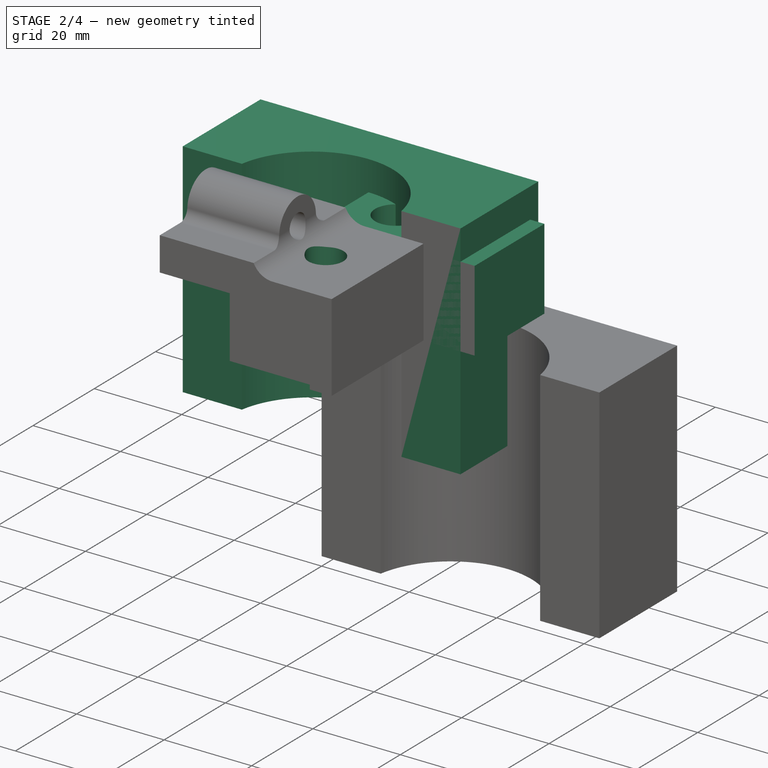
[diagram: stage 2 of 4 — iso view after this stage's code; geometry added in this stage tinted green]
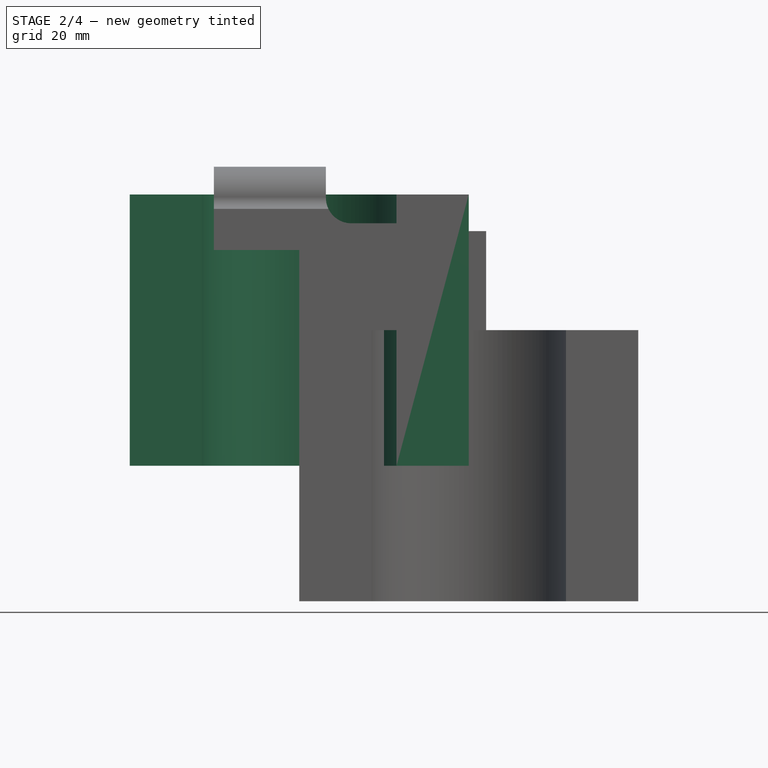
[diagram: stage 2 of 4 — front view after this stage's code; geometry added in this stage tinted green]
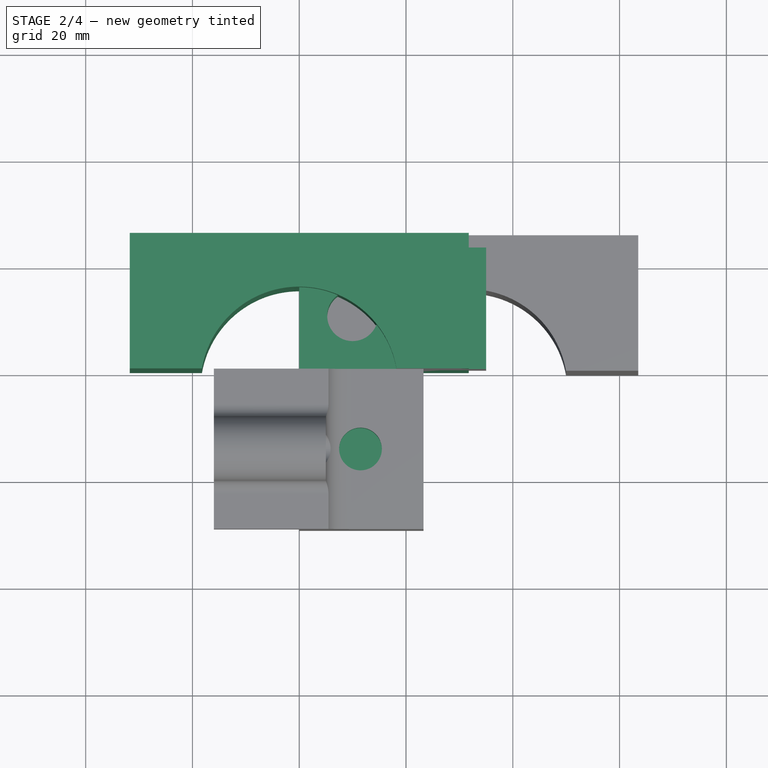
[diagram: stage 2 of 4 — top view after this stage's code; geometry added in this stage tinted green]
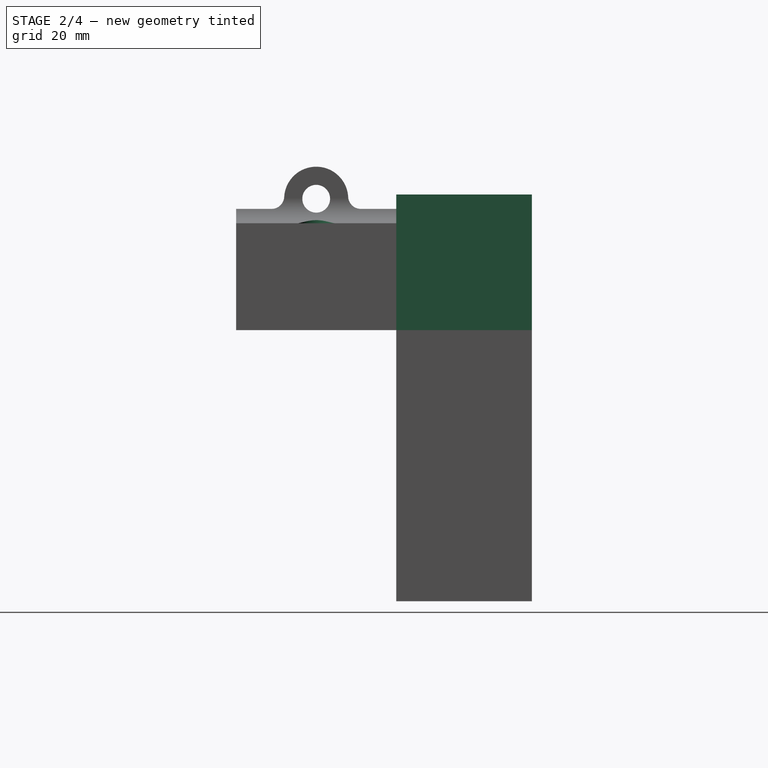
[diagram: stage 2 of 4 — right view after this stage's code; geometry added in this stage tinted green]
FEATURE [Sketcher::SketchObject] Sketch
  sketch-geometry (4):
    g0: Circle CenterX=0 CenterY=0 CenterZ=0 NormalX=0 NormalY=0 NormalZ=1 AngleXU=0 Radius=25.4
    g1: LineSegment StartX=-23.5464 StartY=9.525 StartZ=0 EndX=-275 EndY=9.525 EndZ=0
    g2: LineSegment StartX=-23.5464 StartY=-9.525 StartZ=0 EndX=-275 EndY=-9.525 EndZ=0
    g3: LineSegment StartX=-275 StartY=9.525 StartZ=0 EndX=-275 EndY=-9.525 EndZ=0
  constraints (13):
    c: Radius(g0) = 25.4
    c: PointOnObject(g1,g0)
    c: Horizontal(g1)
    c: PointOnObject(g2,g0)
    c: Horizontal(g2)
    c: Symmetric(g2,g1,g-1)
    c: DistanceY(g2,g1) = 19.05
    c: Coincident(g3,g1)
    c: Coincident(g3,g2)
    c: Vertical(g3)
    c: DistanceX(g1,g-1) = 275
    c: Coincident(g0,g-1)
    c: DistanceX(g1,g1) = 251.454
FEATURE [Sketcher::SketchObject] Sketch001
  expr: Constraints[33] = 1.5 * 3mm
  expr: Constraints[34] = 1.5 * 5
  sketch-geometry (17):
    g0: LineSegment StartX=31.75 StartY=25.4 StartZ=0 EndX=-31.75 EndY=25.4 EndZ=0
    g1: LineSegment StartX=-31.75 StartY=25.4 StartZ=0 EndX=-31.75 EndY=0 EndZ=0
    g2: ArcOfCircle CenterX=0 CenterY=-3.175 CenterZ=0 NormalX=0 NormalY=0 NormalZ=1 AngleXU=0 Radius=18.5 StartAngle=0.172475 EndAngle=2.96912
    g3: LineSegment StartX=-23.05 StartY=25.4 StartZ=0 EndX=-23.05 EndY=13.4 EndZ=0
    g4: LineSegment StartX=-23.05 StartY=13.4 StartZ=0 EndX=-19.05 EndY=10.9966 EndZ=0
    g5: LineSegment StartX=-19.05 StartY=10.9966 StartZ=0 EndX=-15.05 EndY=13.4 EndZ=0
    g6: LineSegment StartX=-15.05 StartY=13.4 StartZ=0 EndX=-15.05 EndY=25.4 EndZ=0
    g7: GeomPoint X=-19.05 Y=25.4 Z=0
    g8: LineSegment StartX=31.75 StartY=25.4 StartZ=0 EndX=31.75 EndY=0 EndZ=0
    g9: LineSegment StartX=31.75 StartY=0 StartZ=0 EndX=18.2255 EndY=5e-12 EndZ=0
    g10: LineSegment StartX=-18.2255 StartY=0 StartZ=0 EndX=-31.75 EndY=0 EndZ=0
    g11: LineSegment StartX=-23.05 StartY=17.9 StartZ=0 EndX=-15.05 EndY=17.9 EndZ=0
    g12: LineSegment StartX=-31.75 StartY=19.9 StartZ=0 EndX=-22.75 EndY=19.9 EndZ=0
    g13: LineSegment StartX=-22.75 StartY=19.9 StartZ=0 EndX=-22.75 EndY=25.4 EndZ=0
    g14: LineSegment StartX=-29.75 StartY=19.9 StartZ=0 EndX=-29.75 EndY=0 EndZ=0
    g15: LineSegment StartX=-24.75 StartY=19.9 StartZ=0 EndX=-24.75 EndY=0 EndZ=0
    g16: GeomPoint X=-27.25 Y=19.9 Z=0
  constraints (54):
    c: Coincident(g0,g1)
    c: Horizontal(g0)
    c: Vertical(g1)
    c: PointOnObject(g1,g-1)
    c: Symmetric(g0,g0,g-2)
    c: PointOnObject(g2,g-1)
    c: PointOnObject(g3,g0)
    c: Vertical(g3)
    c: Coincident(g4,g3)
    c: Coincident(g5,g4)
    c: Coincident(g6,g5)
    c: PointOnObject(g6,g0)
    c: Vertical(g6)
    c: Equal(g6,g3)
    c: Equal(g5,g4)
    c: Angle(g5,g4) = 2.05949
    c: DistanceX(g3,g6) = 8
    c: Distance(g1) = 25.4
    c: Radius(g2) = 18.5
    c: Distance(g0) = 63.5
    c: PointOnObject(g7,g0)
    c: Symmetric(g3,g6,g7)
    c: Coincident(g8,g0)
    c: PointOnObject(g8,g-1)
    c: Vertical(g8)
    c: Coincident(g9,g8)
    c: Coincident(g2,g9)
    c: Coincident(g10,g2)
    c: Coincident(g1,g10)
    c: DistanceX(g-2,g7) = -19.05
    c: PointOnObject(g11,g3)
    c: PointOnObject(g11,g6)
    c: Horizontal(g11)
    c: Distance(g3,g11) = 4.5
    c: Distance(g11,g3) = 7.5
    c: PointOnObject(g2,g-1)
    c: Equal(g10,g9)
    c: Distance(g2,g0) = 28.575
    c: PointOnObject(g12,g1)
    c: Horizontal(g12)
    c: Coincident(g13,g12)
    c: PointOnObject(g13,g0)
    c: Vertical(g13)
    c: PointOnObject(g14,g10)
    c: Vertical(g14)
    c: PointOnObject(g15,g12)
    c: PointOnObject(g15,g10)
    c: Vertical(g15)
    c: Distance(g15,g14) = 5
    c: PointOnObject(g14,g12)
    c: Distance(g12) = 9
    c: Symmetric(g14,g15,g16)
    c: Symmetric(g12,g12,g16)
    c: Distance(g13) = 5.5
FEATURE [Sketcher::SketchObject] CopySketch002
  sketch-geometry (7):
    g0: LineSegment StartX=31.75 StartY=25.4 StartZ=0 EndX=-31.75 EndY=25.4 EndZ=0
    g1: LineSegment StartX=-31.75 StartY=25.4 StartZ=0 EndX=-31.75 EndY=0 EndZ=0
    g2: ArcOfCircle CenterX=0 CenterY=-3.175 CenterZ=0 NormalX=0 NormalY=0 NormalZ=1 AngleXU=0 Radius=18.5 StartAngle=0.172475 EndAngle=2.96912
    g3: GeomPoint X=-19.05 Y=25.4 Z=0
    g4: LineSegment StartX=31.75 StartY=25.4 StartZ=0 EndX=31.75 EndY=0 EndZ=0
    g5: LineSegment StartX=31.75 StartY=0 StartZ=0 EndX=18.2255 EndY=5e-12 EndZ=0
    g6: LineSegment StartX=-18.2255 StartY=1e-12 StartZ=0 EndX=-31.75 EndY=0 EndZ=0
  constraints (22):
    c: Coincident(g0,g1)
    c: Horizontal(g0)
    c: Vertical(g1)
    c: PointOnObject(g1,g-1)
    c: Symmetric(g0,g0,g-2)
    c: PointOnObject(g2,g-1)
    c: Distance(g1) = 25.4
    c: Radius(g2) = 18.5
    c: Distance(g0) = 63.5
    c: PointOnObject(g3,g0)
    c: Coincident(g4,g0)
    c: PointOnObject(g4,g-1)
    c: Vertical(g4)
    c: Coincident(g5,g4)
    c: Coincident(g2,g5)
    c: Coincident(g6,g2)
    c: Coincident(g1,g6)
    c: DistanceX(g-2,g3) = -19.05
    c: PointOnObject(g2,g-1)
    c: Equal(g6,g5)
    c: Distance(g2,g0) = 28.575
    c: Distance(g-1,g2) = 3.175
FEATURE [PartDesign::Pad] Pad
  Length = 50.8
  Length2 = 100
  Midplane = true
  Profile = -> CopySketch002
  Type = 0
FEATURE [PartDesign::Body] Body001
  Group = -> [Pad001,Sketch004,Hole001,Mirrored002]
  Origin = -> Origin002
  Tip = -> Mirrored002
FEATURE [App::Part] Part001
  Group = -> [Body001]
  License = CC BY 3.0
  LicenseURL = http://creativecommons.org/licenses/by/3.0/
  Origin = -> Origin003
  Placement = pos=(0,0,1) rot=(1,0,0;0rad)
FEATURE [App::FeaturePython] Section  # WARN: FeaturePython — macro-defined, semantics opaque (R4)
  Objects = -> [Mirrored001]
  OnlySolids = true
FEATURE [App::FeaturePython] Section001  # WARN: FeaturePython — macro-defined, semantics opaque (R4)
  Objects = -> [Mirrored002]
  OnlySolids = true
FEATURE [Part::Part2DObjectPython] Shape2DView  label="top_section_a"  # Draft 2D object (typed FeaturePython)
  Base = -> Section
  HiddenLines = false
  InPlace = true
  Projection = (-0.233436,0.221611,0.946782)
  ProjectionMode = 2
  SegmentLength = 0.05
  Tessellation = false
FEATURE [Part::Part2DObjectPython] Shape2DView001  label="bot_section_a"  # Draft 2D object (typed FeaturePython)
  Base = -> Section001
  HiddenLines = false
  InPlace = true
  Projection = (-0.233436,0.221611,0.946782)
  ProjectionMode = 2
  SegmentLength = 0.05
  Tessellation = false
FEATURE [App::FeaturePython] Section002  # WARN: FeaturePython — macro-defined, semantics opaque (R4)
  Objects = -> [Mirrored002]
  OnlySolids = true
  Placement = pos=(0,-20,0) rot=(1,0,0;1.5708rad)
FEATURE [Part::Part2DObjectPython] Shape2DView002  label="bot_top"  # Draft 2D object (typed FeaturePython)
  Base = -> Section002
  HiddenLines = false
  InPlace = true
  Projection = (-0.460119,-0.660946,0.592824)
  ProjectionMode = 0
  SegmentLength = 0.05
  Tessellation = false
FEATURE [App::FeaturePython] Section003  # WARN: FeaturePython — macro-defined, semantics opaque (R4)
  Objects = -> [Mirrored001]
  OnlySolids = true
  Placement = pos=(0,20,0) rot=(-1,0,0;1.5708rad)
FEATURE [Part::Part2DObjectPython] Shape2DView003  label="top_top"  # Draft 2D object (typed FeaturePython)
  Base = -> Section003
  HiddenLines = false
  InPlace = true
  Projection = (-0.668848,-0.0310535,0.74275)
  ProjectionMode = 0
  SegmentLength = 0.05
  Tessellation = false
FEATURE [App::FeaturePython] Section004  # WARN: FeaturePython — macro-defined, semantics opaque (R4)
  Objects = -> [Mirrored002]
  OnlySolids = true
  Placement = pos=(-28.8675,28.8675,-28.8675) rot=(0.77054,0.590413,0.240168;0.987856rad)
FEATURE [Part::Part2DObjectPython] Shape2DView004  label="bot_iso"  # Draft 2D object (typed FeaturePython)
  Base = -> Section004
  HiddenLines = false
  InPlace = true
  Projection = (-0.436471,-0.696891,-0.569066)
  ProjectionMode = 0
  SegmentLength = 0.05
  Tessellation = false
FEATURE [App::FeaturePython] Section005  # WARN: FeaturePython — macro-defined, semantics opaque (R4)
  Objects = -> [Mirrored001]
  OnlySolids = true
  Placement = pos=(30.9318,-30.1018,25.2409) rot=(0.618012,-0.608668,-0.497579;3.13564rad)
FEATURE [Part::Part2DObjectPython] Shape2DView005  label="top_iso"  # Draft 2D object (typed FeaturePython)
  Base = -> Section005
  HiddenLines = false
  InPlace = true
  Projection = (-0.35,0.12,0.93)
  ProjectionMode = 0
  SegmentLength = 0.05
  Tessellation = false
FEATURE [Drawing::FeatureViewPart] Ortho  label="Ortho_0_0"
  Direction = (1,0,0)
  HiddenWidth = 0.15
  LineWidth = 0.35
  Rotation = 180
  ShowHiddenLines = true
  ShowSmoothLines = true
  Source = -> Body
  Tolerance = 0.05
  ViewResult = <blob: 13077 chars omitted>
  Visible = false
  X = 79.95
  Y = 63.65
FEATURE [Drawing::FeatureViewPart] Ortho002  label="Ortho_1_0"
  Direction = (0,0,1)
  HiddenWidth = 0.15
  LineWidth = 0.35
  Rotation = 0
  ShowHiddenLines = true
  ShowSmoothLines = true
  Source = -> Body
  Tolerance = 0.05
  ViewResult = <blob: 6579 chars omitted>
  Visible = false
  X = 207.525
  Y = 63.65
FEATURE [Drawing::FeatureViewPart] Ortho007  label="Ortho_1_-1"
  Direction = (0.57735,0.57735,0.57735)
  HiddenWidth = 0.15
  LineWidth = 0.35
  Rotation = 0
  ShowHiddenLines = true
  ShowSmoothLines = true
  Source = -> Body
  Tolerance = 0.05
  ViewResult = <blob: 5452 chars omitted>
  Visible = false
  X = 207.525
  Y = 152.379
FEATURE [Drawing::FeatureViewPart] Ortho008  label="Ortho_0_-1"
  Direction = (0,1,0)
  HiddenWidth = 0.15
  LineWidth = 0.35
  Rotation = 180
  ShowHiddenLines = true
  ShowSmoothLines = true
  Source = -> Body
  Tolerance = 0.05
  ViewResult = <blob: 2478 chars omitted>
  Visible = false
  X = 79.95
  Y = 136.825
FEATURE [Drawing::FeaturePage] Page
  Group = -> [Ortho,Ortho002,Ortho007,Ortho008]
  Template = <path>
FEATURE [TechDraw::DrawSVGTemplate] Template
  EditableTexts = Designed_by_Name=Designed by Name; Drawing_number=Drawing number; FC-Date=Date; FC-SC=Scale; FC-SH=Sheet; FC-Title=Title; Subtitle=Subtitle; Weight=Weight
  Height = 210
  Orientation = 1
  Width = 297
FEATURE [TechDraw::DrawProjGroupItem] ProjItem  label="Front"
  ArcCenterMarks = true
  CenterScale = 2
  CoarseView = false
  Direction = (0,0,-1)
  ExtraWidth = 1.4
  Focus = 100
  HardHidden = false
  HiddenWidth = 0.15
  HorizCenterLine = false
  IsoCount = 0
  IsoHidden = false
  IsoVisible = false
  IsoWidth = 0.3
  KeepLabel = false
  LineWidth = 0.7
  LockPosition = false
  Perspective = false
  Rotation = 0
  RotationVector = (-1,0,0)
  ScaleType = 0
  SeamHidden = false
  SeamVisible = false
  ShowSectionLine = true
  SmoothHidden = false
  SmoothVisible = false
  Source = -> [Body]
  Type = 0
  VertCenterLine = false
  X = -36.075
  Y = 0
FEATURE [TechDraw::DrawProjGroupItem] ProjItem001  label="Left"
  ArcCenterMarks = true
  CenterScale = 2
  CoarseView = false
  Direction = (1,0,0)
  ExtraWidth = 1.4
  Focus = 100
  HardHidden = true
  HiddenWidth = 0.15
  HorizCenterLine = false
  IsoCount = 0
  IsoHidden = false
  IsoVisible = false
  IsoWidth = 0.3
  KeepLabel = false
  LineWidth = 0.7
  LockPosition = false
  Perspective = false
  Rotation = 0
  RotationVector = (0,0,-1)
  ScaleType = 0
  SeamHidden = false
  SeamVisible = false
  ShowSectionLine = false
  SmoothHidden = true
  SmoothVisible = false
  Source = -> [Body]
  Type = 1
  VertCenterLine = false
  X = 63.5
  Y = 0
FEATURE [TechDraw::DrawProjGroupItem] ProjItem002  label="FrontTopLeft"
  ArcCenterMarks = true
  CenterScale = 2
  CoarseView = false
  Direction = (1,1,-1)
  ExtraWidth = 1.4
  Focus = 100
  HardHidden = false
  HiddenWidth = 0.15
  HorizCenterLine = false
  IsoCount = 0
  IsoHidden = false
  IsoVisible = false
  IsoWidth = 0.3
  KeepLabel = false
  LineWidth = 0.7
  LockPosition = false
  Perspective = false
  Rotation = 0
  RotationVector = (-1,0,-1)
  ScaleType = 0
  SeamHidden = false
  SeamVisible = false
  ShowSectionLine = true
  SmoothHidden = false
  SmoothVisible = false
  Source = -> [Body]
  Type = 6
  VertCenterLine = false
  X = 80.8223
  Y = -80.8223
FEATURE [TechDraw::DrawProjGroupItem] ProjItem003  label="Top"
  ArcCenterMarks = true
  CenterScale = 2
  CoarseView = false
  Direction = (0,1,0)
  ExtraWidth = 1.4
  Focus = 100
  HardHidden = false
  HiddenWidth = 0.15
  HorizCenterLine = false
  IsoCount = 0
  IsoHidden = false
  IsoVisible = false
  IsoWidth = 0.3
  KeepLabel = false
  LineWidth = 0.7
  LockPosition = false
  Perspective = false
  Rotation = 0
  RotationVector = (-1,0,0)
  ScaleType = 0
  SeamHidden = false
  SeamVisible = false
  ShowSectionLine = true
  SmoothHidden = false
  SmoothVisible = false
  Source = -> [Body]
  Type = 4
  VertCenterLine = false
  X = 0
  Y = -80.8223
FEATURE [TechDraw::DrawProjGroup] ProjGroup
  Anchor = -> ProjItem
  AutoDistribute = true
  CubeDirs = (6) [(1.22465e-16,-1,6.12323e-17),(0,-6.12323e-17,-1),(1,1.22465e-16,-7.4988e-33),(0,6.12323e-17,1),(-1,-1.22465e-16,7.4988e-33),(-1.22465e-16,1,-6.12323e-17)]
  CubeRotations = (6) [(-1,1.22465e-16,-7.4988e-33),(-1,1.22465e-16,-7.4988e-33),(0,6.12323e-17,-1),(1,-1.22465e-16,7.4988e-33),(0,-6.12323e-17,1),(-1,1.22465e-16,-7.4988e-33)]
  KeepLabel = false
  LockPosition = false
  ProjectionType = 0
  Rotation = 0
  ScaleType = 0
  Source = -> [Body]
  Views = -> [ProjItem,ProjItem001,ProjItem002,ProjItem003]
  X = 52.9464
  Y = 177.664
  spacingX = 0
  spacingY = 0
FEATURE [TechDraw::DrawPage] Page001
  KeepUpdated = true
  ProjectionType = 0
  Template = -> Template
  Views = -> [ProjGroup]
FEATURE [Sketcher::SketchObject] Sketch006  label="offset_for_MTMF_2in_tubes"
  sketch-geometry (2):
    g0: LineSegment StartX=-4.81885 StartY=12.8886 StartZ=0 EndX=88.8484 EndY=47.9093 EndZ=0
    g1: LineSegment [constr] StartX=0 StartY=0 StartZ=0 EndX=-4.81885 EndY=12.8886 EndZ=0
  constraints (7):
    c: Angle(g-1,g0) = 0.357792
    c: Distance(g-1,g0) = 13.76
    c: Coincident(g1,g-1)
    c: Coincident(g1,g0)
    c: Perpendicular(g1,g0)
    c: Distance(g0) = 100
    c: DistanceX(g0,g-1) = 4.81885
FEATURE [Sketcher::SketchObject] Sketch007
  MapMode = 5
  Support = -> [XY_Plane004]
  expr: Constraints[31] = 0.80000000000000004 * 10
  sketch-geometry (10):
    g0: LineSegment StartX=0 StartY=0 StartZ=0 EndX=35 EndY=0 EndZ=0
    g1: LineSegment StartX=35 StartY=0 StartZ=0 EndX=35 EndY=22.7625 EndZ=0
    g2: LineSegment StartX=35 StartY=22.7625 StartZ=0 EndX=0 EndY=22.7625 EndZ=0
    g3: LineSegment StartX=0 StartY=22.7625 StartZ=0 EndX=0 EndY=0 EndZ=0
    g4: Circle CenterX=25 CenterY=10 CenterZ=0 NormalX=0 NormalY=0 NormalZ=1 AngleXU=0 Radius=4.7625
    g5: Circle CenterX=10 CenterY=10 CenterZ=0 NormalX=0 NormalY=0 NormalZ=1 AngleXU=0 Radius=4.7625
    g6: LineSegment [constr] StartX=7.5 StartY=14.0536 StartZ=0 EndX=7.5 EndY=22.7625 EndZ=0
    g7: LineSegment [constr] StartX=12.5 StartY=14.0536 StartZ=0 EndX=12.5 EndY=22.7625 EndZ=0
    g8: LineSegment [constr] StartX=10 StartY=10 StartZ=0 EndX=10 EndY=22.7625 EndZ=0
    g9: GeomPoint X=10 Y=14.7625 Z=0
  constraints (32):
    c: Coincident(g0,g1)
    c: Coincident(g1,g2)
    c: Coincident(g2,g3)
    c: Coincident(g3,g0)
    c: Horizontal(g0)
    c: Horizontal(g2)
    c: Vertical(g1)
    c: Vertical(g3)
    c: Coincident(g0,g-1)
    c: Distance(g2) = 35
    c: Distance(g1) = 22.7625
    c: Radius(g4) = 4.7625
    c: Radius(g5) = 4.7625
    c: Distance(g4,g2) = 12.7625
    c: Distance(g4,g1) = 10
    c: DistanceY(g5,g4) = 0
    c: Distance(g5,g3) = 10
    c: PointOnObject(g6,g5)
    c: PointOnObject(g6,g2)
    c: Vertical(g6)
    c: PointOnObject(g7,g5)
    c: PointOnObject(g7,g2)
    c: Vertical(g7)
    c: Coincident(g8,g5)
    c: PointOnObject(g8,g2)
    c: Vertical(g8)
    c: Symmetric(g6,g7,g8)
    c: DistanceX(g6,g7) = 5
    c: Distance(g4,g0) = 10
    c: PointOnObject(g9,g5)
    c: PointOnObject(g9,g8)
    c: DistanceY(g9,g8) = 8
FEATURE [PartDesign::Pad] Pad002
  Length = 18.542
  Length2 = 100
  Profile = -> Sketch007
  Type = 0
FEATURE [Sketcher::SketchObject] Sketch011
  ExternalGeometry = -> [Pocket002]
  MapMode = 5
  Placement = pos=(0,0,20) rot=(0,0,1;3.14159rad)
  Support = -> [Pocket002]
  sketch-geometry (2):
    g0: Circle CenterX=-11.4705 CenterY=15 CenterZ=0 NormalX=0 NormalY=0 NormalZ=1 AngleXU=0 Radius=4
    g1: LineSegment [constr] StartX=-11.4705 StartY=15 StartZ=0 EndX=-5.47045 EndY=15 EndZ=0
  constraints (5):
    c: Radius(g0) = 4
    c: Coincident(g1,g0)
    c: Horizontal(g1)
    c: Symmetric(g-3,g-4,g1)
    c: Distance(g1) = 6
FEATURE [PartDesign::Pocket] Pocket003
  BaseFeature = -> Pocket002
  Length = 5
  Length2 = 100
  Midplane = true
  Placement = pos=(0,0,0) rot=(1,0,0;1.5708rad)
  Profile = -> Sketch011
  Type = 4
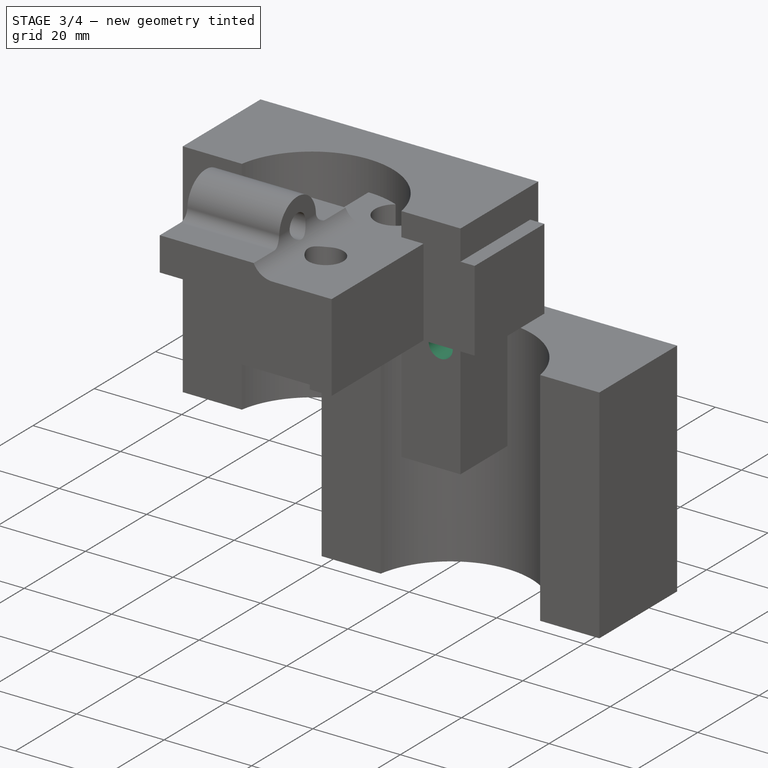
[diagram: stage 3 of 4 — iso view after this stage's code; geometry added in this stage tinted green]
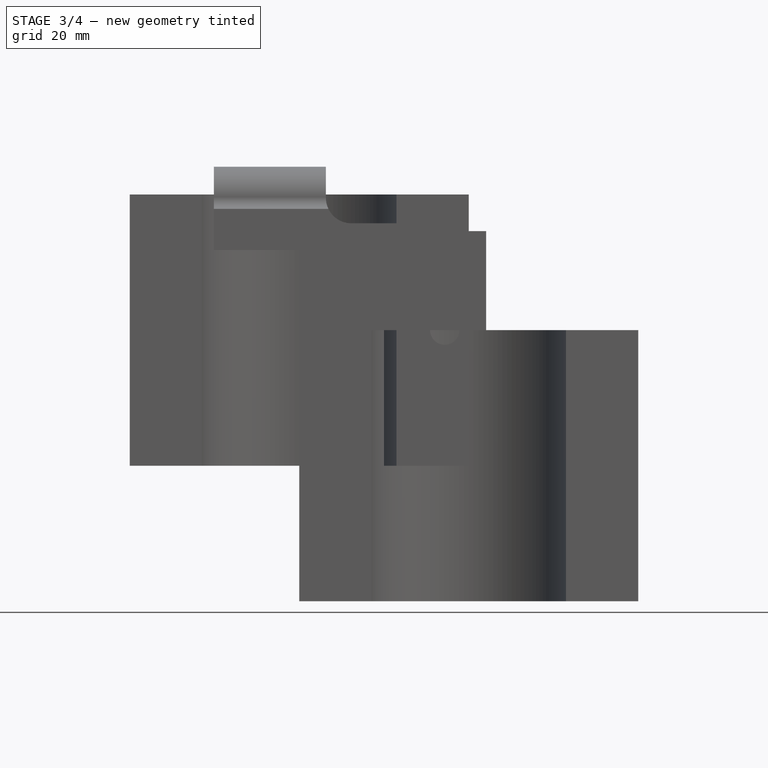
[diagram: stage 3 of 4 — front view after this stage's code; geometry added in this stage tinted green]
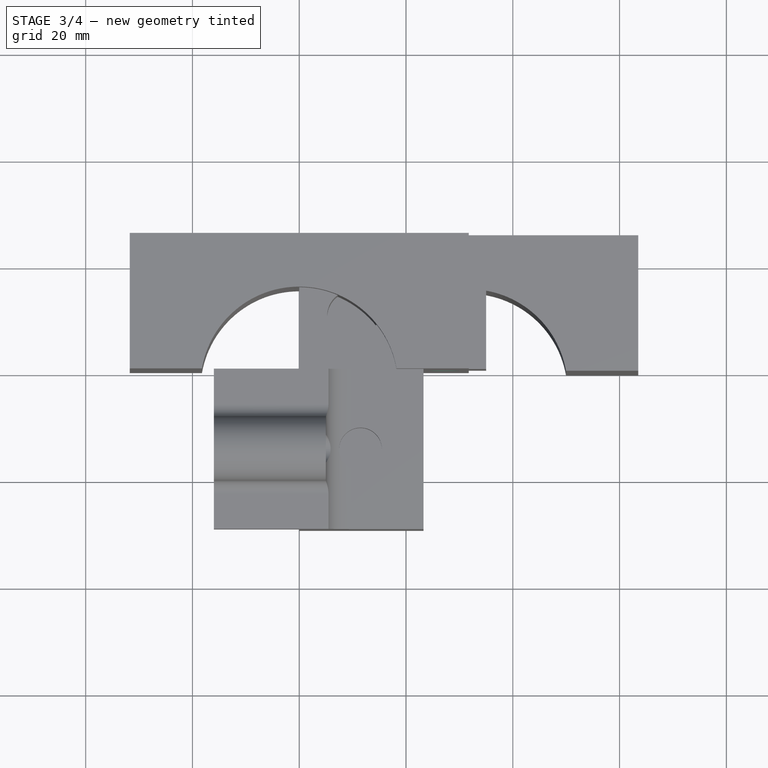
[diagram: stage 3 of 4 — top view after this stage's code; geometry added in this stage tinted green]
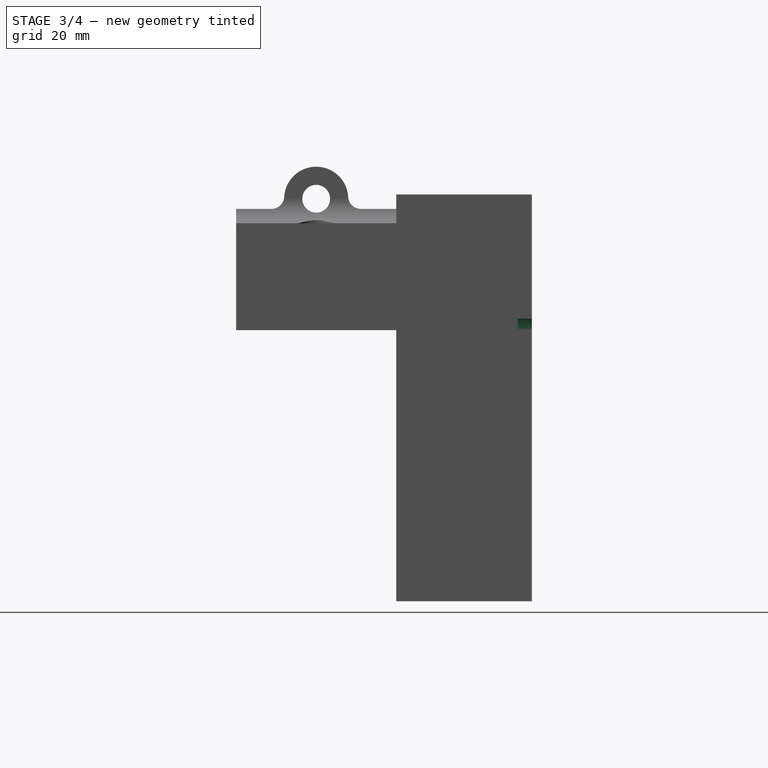
[diagram: stage 3 of 4 — right view after this stage's code; geometry added in this stage tinted green]
FEATURE [Sketcher::SketchObject] Sketch002
  ExternalGeometry = -> [Pad]
  MapMode = 5
  Placement = pos=(0,25.4,0) rot=(0,0.707107,0.707107;3.14159rad)
  Support = -> [Pad]
  sketch-geometry (1):
    g0: Circle CenterX=-27.25 CenterY=0 CenterZ=0 NormalX=0 NormalY=0 NormalZ=1 AngleXU=0 Radius=5
  constraints (3):
    c: PointOnObject(g0,g-1)
    c: Radius(g0) = 5
    c: Distance(g0,g-3) = 4.5
FEATURE [PartDesign::Pocket] Pocket
  BaseFeature = -> Pad
  Length = 5.5
  Length2 = 100
  Profile = -> Sketch002
  Type = 0
FEATURE [PartDesign::Mirrored] Mirrored
  BaseFeature = -> Pocket
  MirrorPlane = -> YZ_Plane
  Originals = -> [Pocket]
FEATURE [Sketcher::SketchObject] Sketch003
  ExternalGeometry = -> [Mirrored]
  MapMode = 5
  Placement = pos=(0,19.9,0) rot=(0,0.707107,0.707107;3.14159rad)
  Support = -> [Mirrored]
  sketch-geometry (1):
    g0: Circle CenterX=-27.25 CenterY=0 CenterZ=0 NormalX=0 NormalY=0 NormalZ=1 AngleXU=0 Radius=2
  constraints (2):
    c: Coincident(g0,g-4)
    c: Radius(g0) = 2
FEATURE [PartDesign::Hole] Hole
  BaseFeature = -> Mirrored
  Depth = 25
  DepthType = 1
  Diameter = 5.5
  DrillPoint = 1
  DrillPointAngle = 118
  HoleCutCountersinkAngle = 90
  HoleCutDepth = 0
  HoleCutDiameter = 5
  HoleCutType = 0
  ModelActualThread = false
  Profile = -> Sketch003
  Tapered = false
  TaperedAngle = 90
  ThreadAngle = 60
  ThreadClass = 0
  ThreadCutOffInner = 0.0866025
  ThreadCutOffOuter = 0.173205
  ThreadDirection = 1
  ThreadFit = 0
  ThreadPitch = 0.8
  ThreadSize = 6
  ThreadType = 1
  Threaded = false
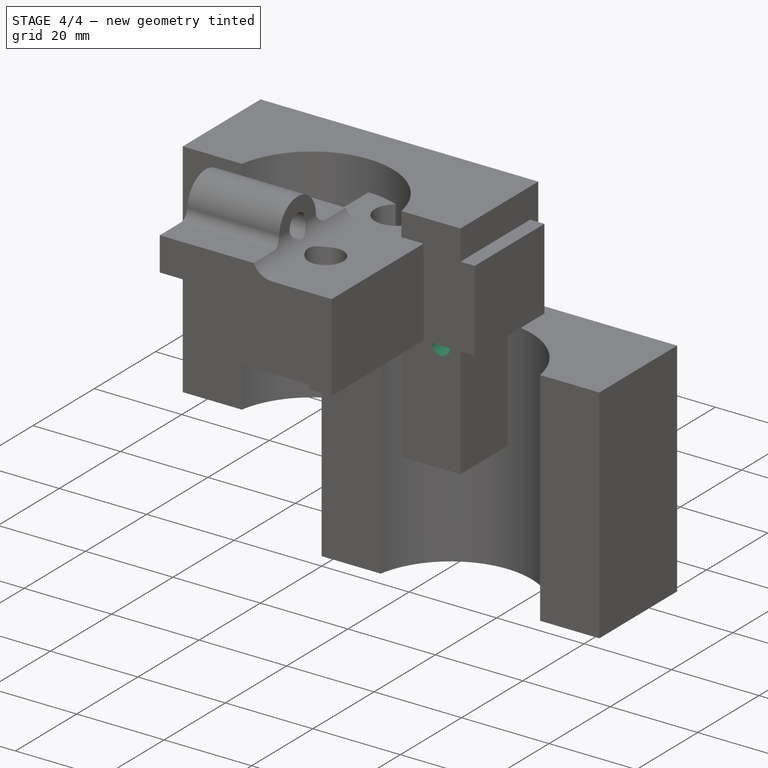
[diagram: stage 4 of 4 — iso view after this stage's code; geometry added in this stage tinted green]
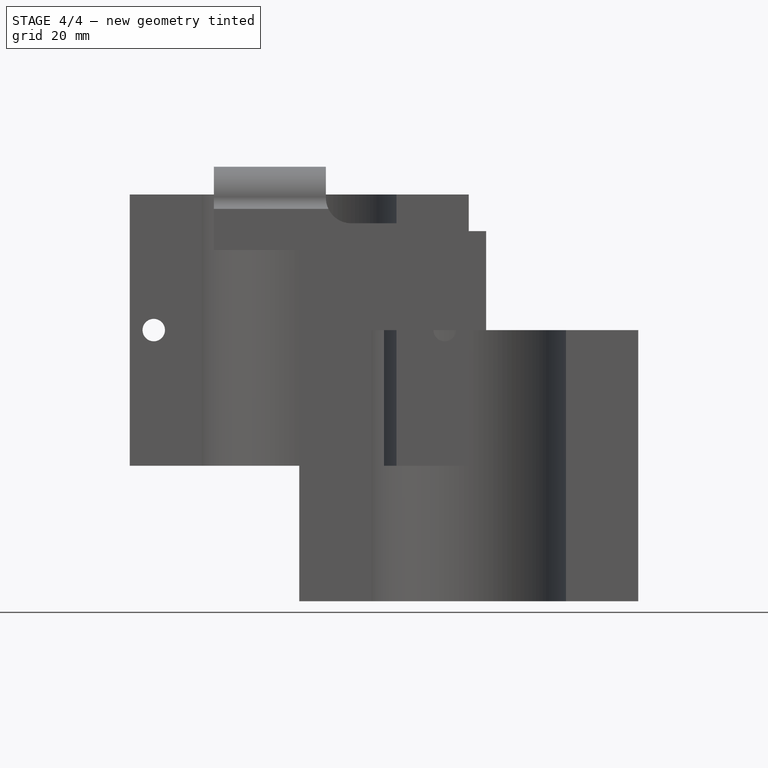
[diagram: stage 4 of 4 — front view after this stage's code; geometry added in this stage tinted green]
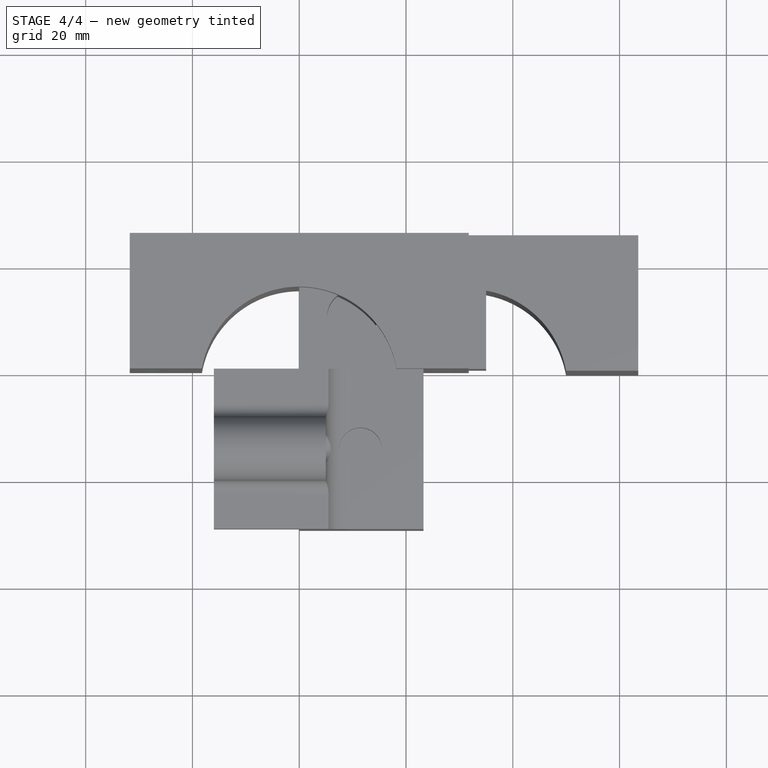
[diagram: stage 4 of 4 — top view after this stage's code; geometry added in this stage tinted green]
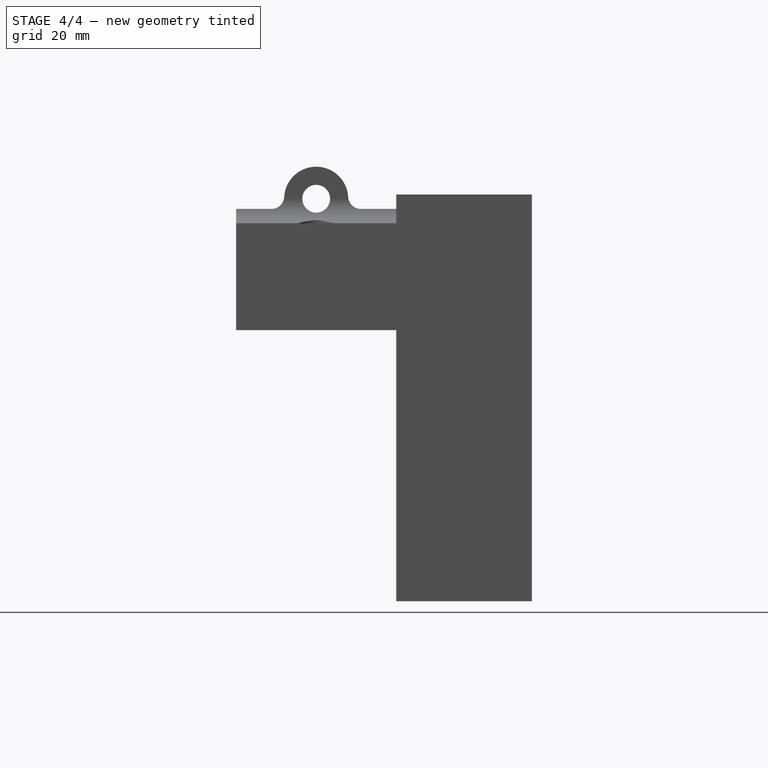
[diagram: stage 4 of 4 — right view after this stage's code; geometry added in this stage tinted green]
FEATURE [PartDesign::Mirrored] Mirrored001
  BaseFeature = -> Hole
  MirrorPlane = -> Sketch003 [V_Axis]
  Originals = -> [Hole]
FEATURE [PartDesign::Body] Body
  Group = -> [Pad,Sketch002,Pocket,Mirrored,Sketch003,Hole,Mirrored001]
  Origin = -> Origin
  Tip = -> Pad
FEATURE [App::Part] Part
  Group = -> [Body,CopySketch002]
  License = CC BY 3.0
  LicenseURL = http://creativecommons.org/licenses/by/3.0/
  Origin = -> Origin001
  Placement = pos=(0,0,3.17) rot=(1,0,0;1.5708rad)
FEATURE [PartDesign::Pad] Pad001
  Length = 50.8
  Length2 = 100
  Midplane = true
  Profile = -> CopySketch002
  Type = 0
FEATURE [Sketcher::SketchObject] Sketch004
  ExternalGeometry = -> [Pad001]
  MapMode = 5
  Placement = pos=(0,25.4,0) rot=(0,0.707107,0.707107;3.14159rad)
  Support = -> [Pad001]
  sketch-geometry (2):
    g0: GeomPoint X=-27.25 Y=0 Z=0
    g1: Circle CenterX=-27.25 CenterY=0 CenterZ=0 NormalX=0 NormalY=0 NormalZ=1 AngleXU=0 Radius=3.1252
  constraints (3):
    c: Coincident(g1,g0)
    c: Distance(g0,g-3) = 4.5
    c: PointOnObject(g0,g-1)
FEATURE [PartDesign::Hole] Hole001
  BaseFeature = -> Pad001
  Depth = 25
  DepthType = 1
  Diameter = 4.2
  DrillPoint = 1
  DrillPointAngle = 118
  HoleCutCountersinkAngle = 90
  HoleCutDepth = 0
  HoleCutDiameter = 5
  HoleCutType = 0
  ModelActualThread = false
  Profile = -> Sketch004
  Tapered = false
  TaperedAngle = 90
  ThreadAngle = 60
  ThreadClass = 0
  ThreadCutOffInner = 0.0866025
  ThreadCutOffOuter = 0.173205
  ThreadDirection = 1
  ThreadFit = 0
  ThreadPitch = 0.8
  ThreadSize = 6
  ThreadType = 1
  Threaded = true
FEATURE [PartDesign::Mirrored] Mirrored002
  BaseFeature = -> Hole001
  MirrorPlane = -> Sketch004 [V_Axis]
  Originals = -> [Hole001]
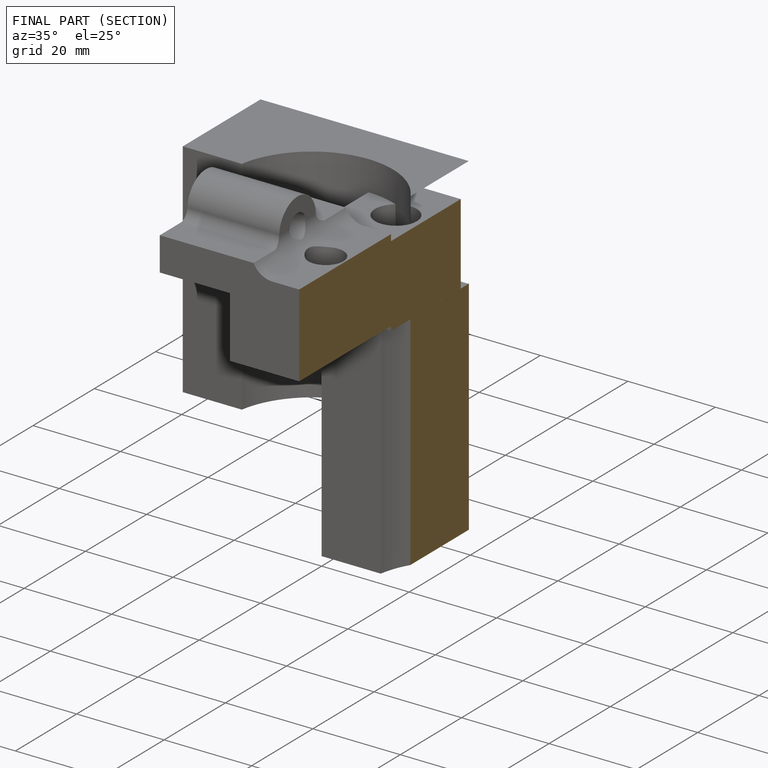
[diagram: finished part — half-section view (interior)]
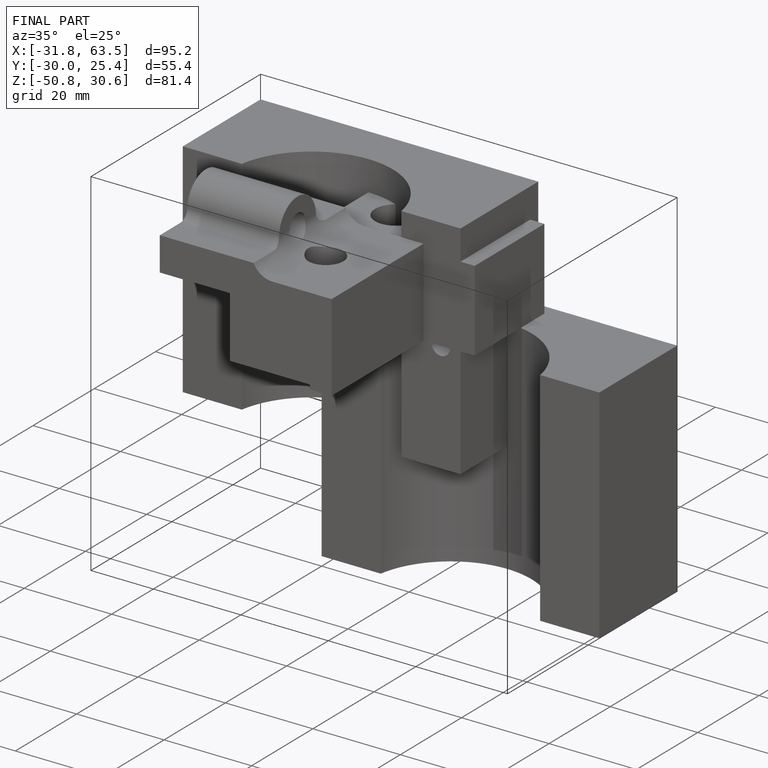
[diagram: finished part — iso view with bounding-box wireframe]
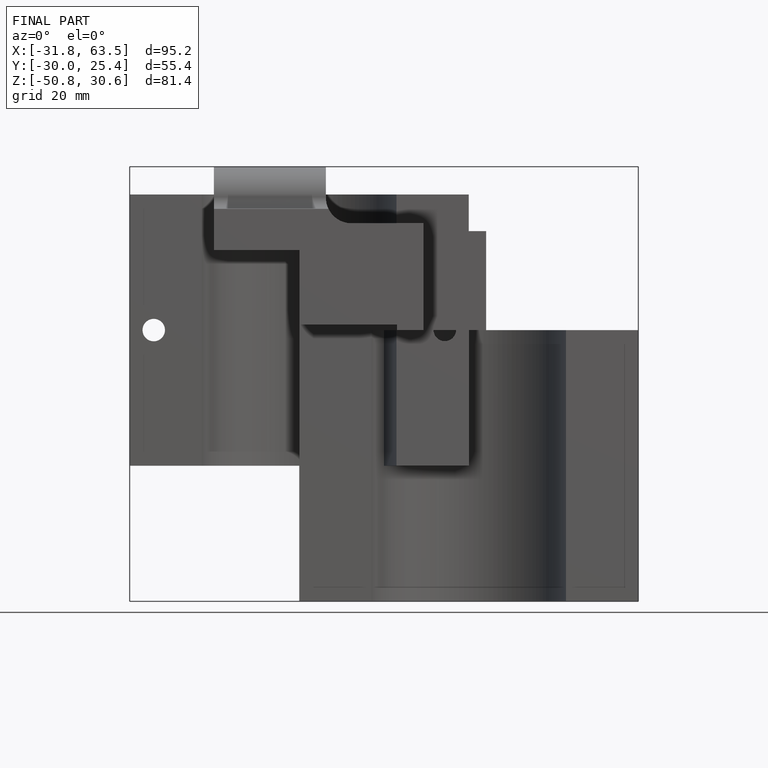
[diagram: finished part — front view with bounding-box wireframe]
